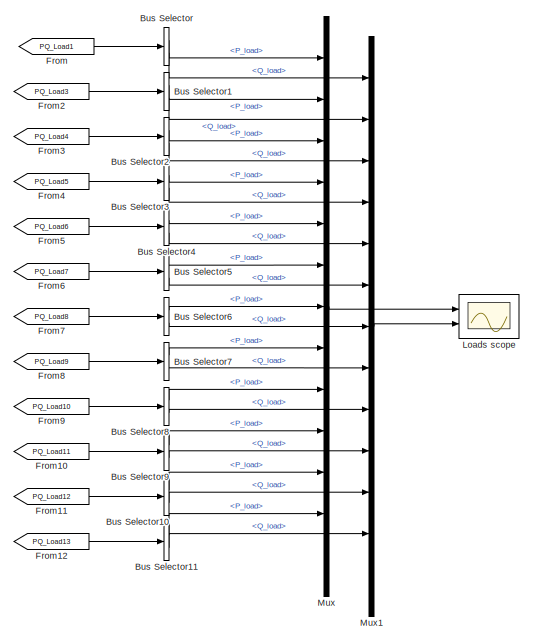
[diagram: root canvas - part 1/16, top left region]
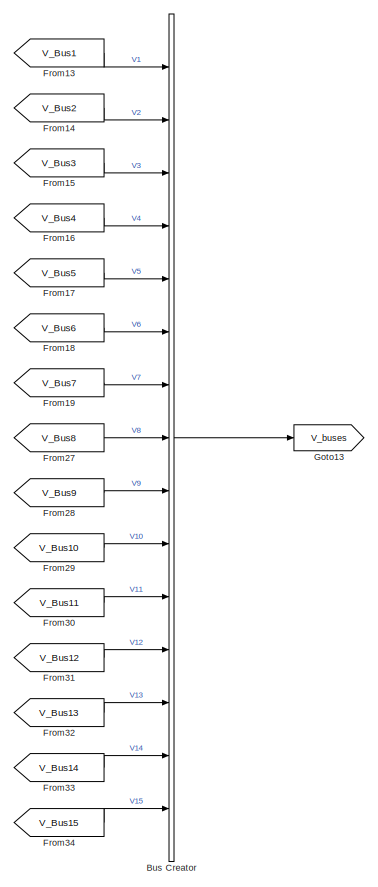
[diagram: root canvas - part 2/16, top left region]
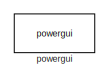
[diagram: root canvas - part 3/16, top center region]
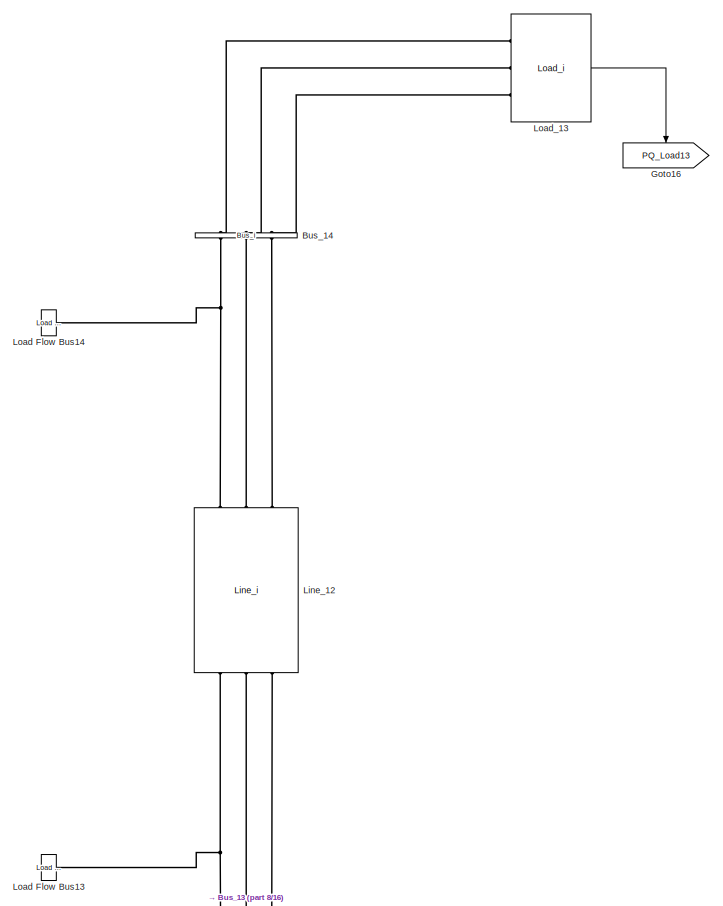
[diagram: root canvas - part 4/16, top right region]
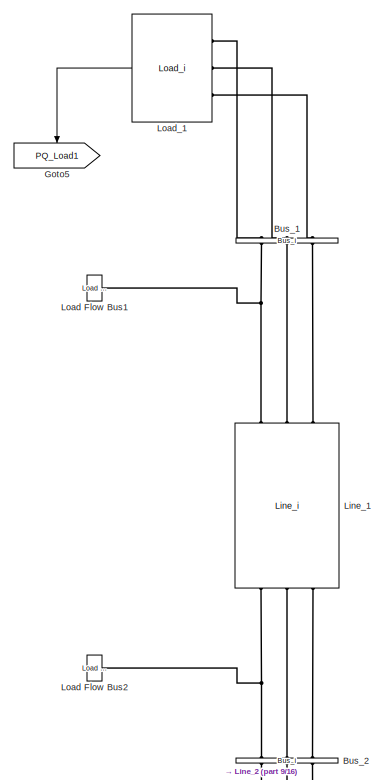
[diagram: root canvas - part 5/16, top center region]
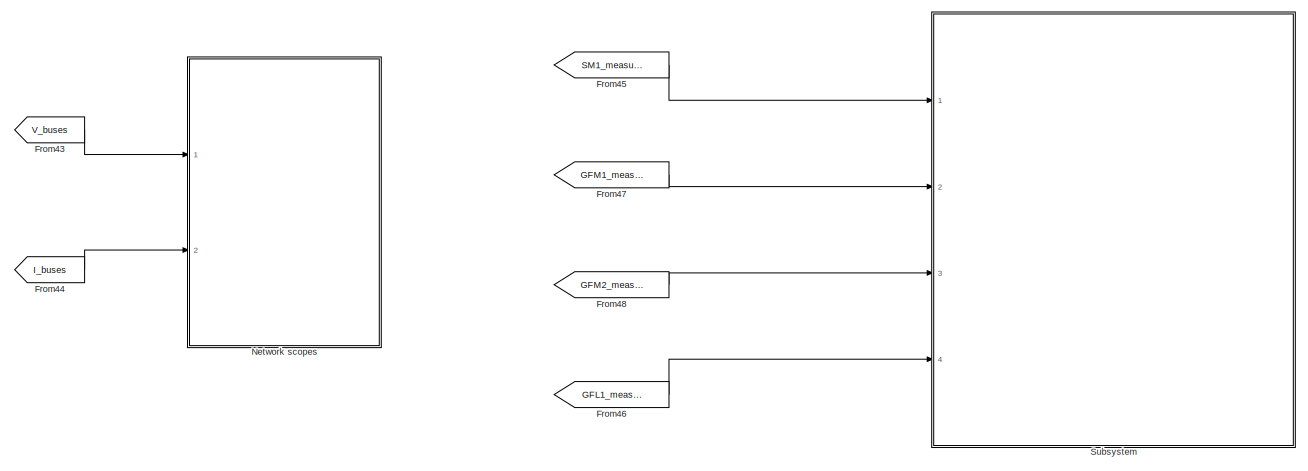
[diagram: root canvas - part 6/16, top left region]
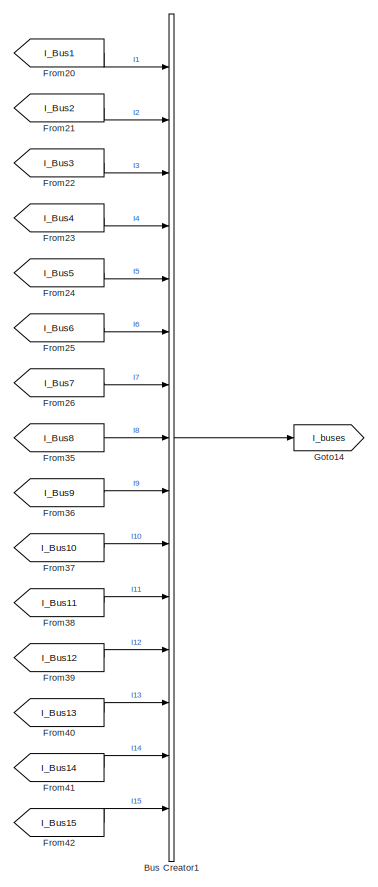
[diagram: root canvas - part 7/16, middle left region]
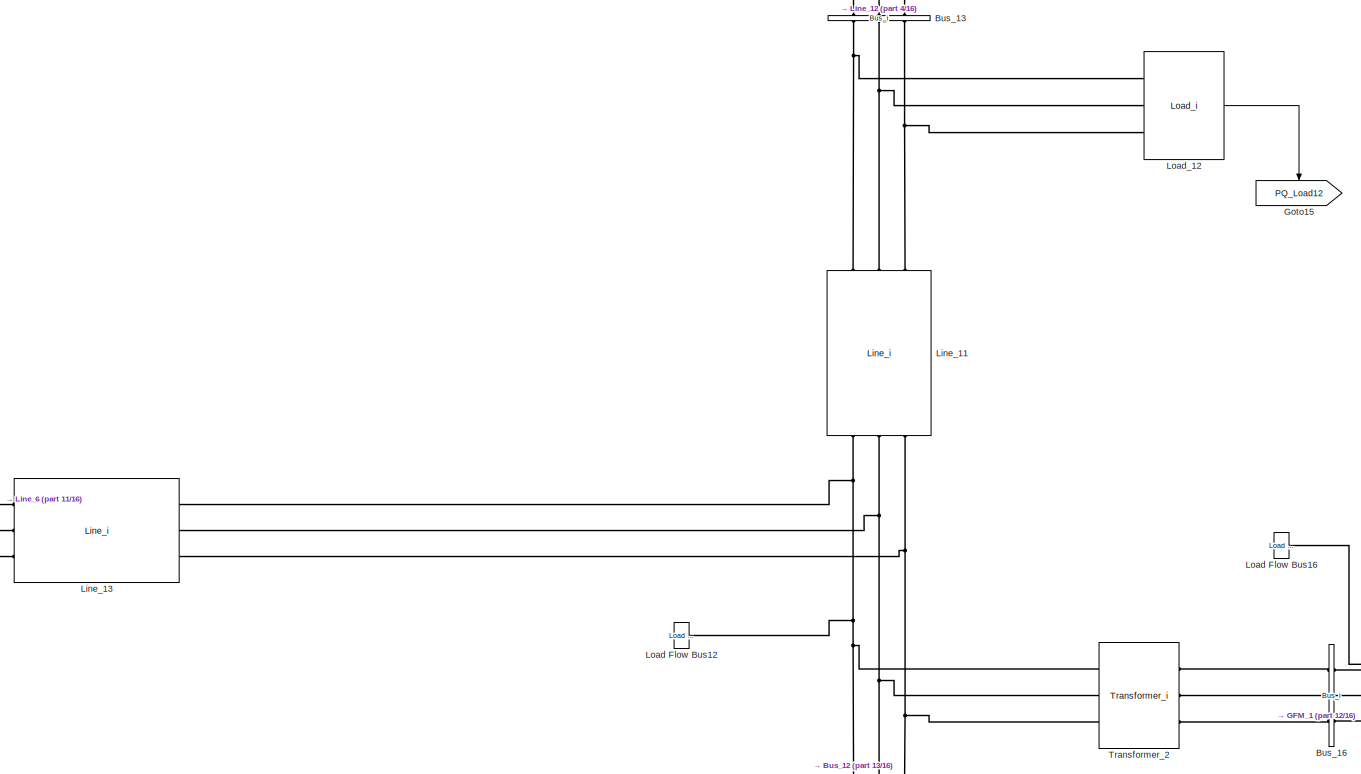
[diagram: root canvas - part 8/16, middle right region]
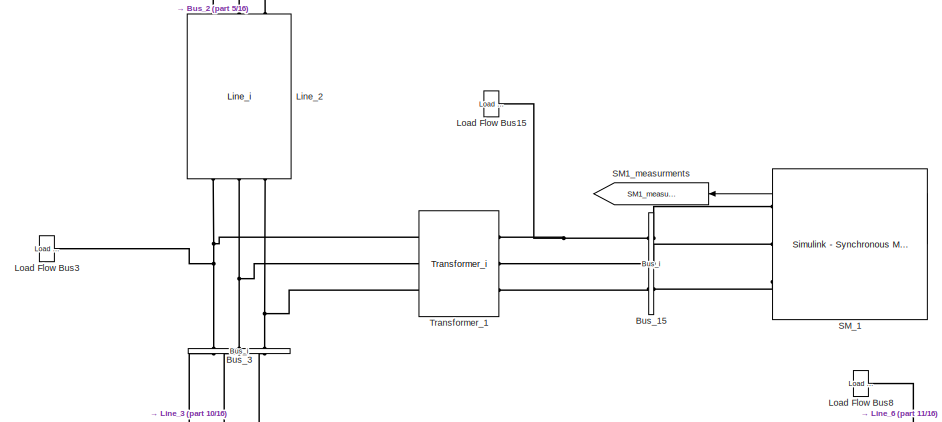
[diagram: root canvas - part 9/16, central region]
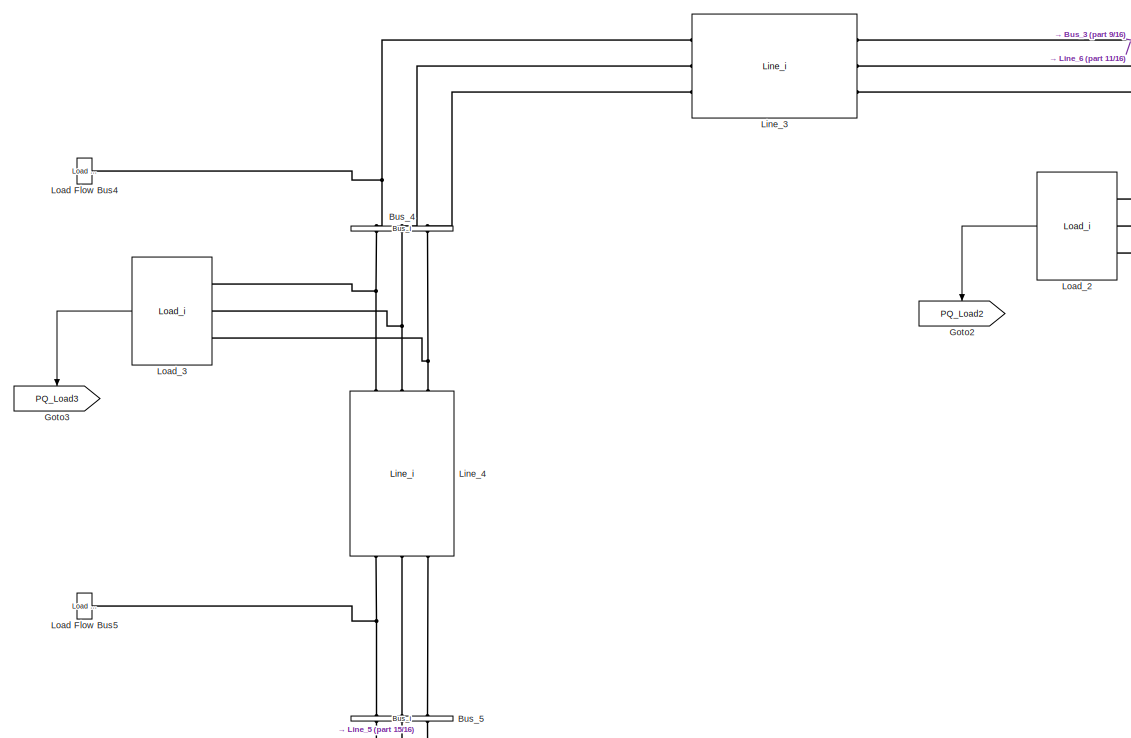
[diagram: root canvas - part 10/16, central region]
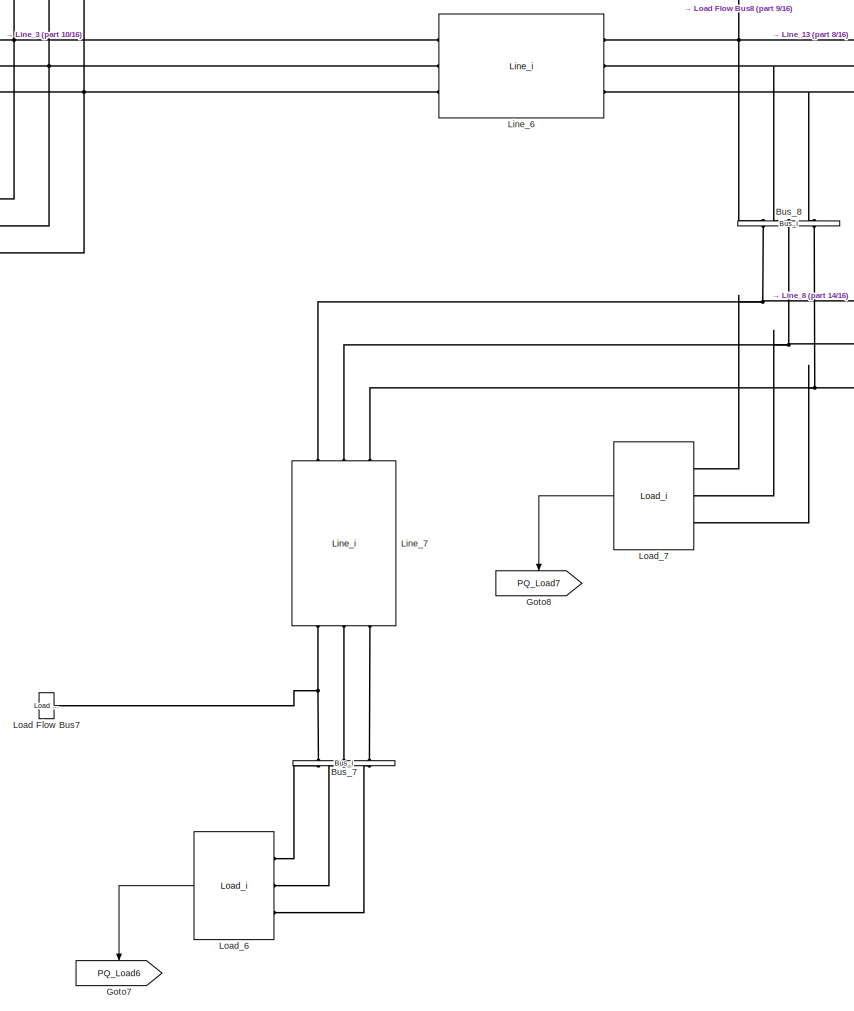
[diagram: root canvas - part 11/16, central region]
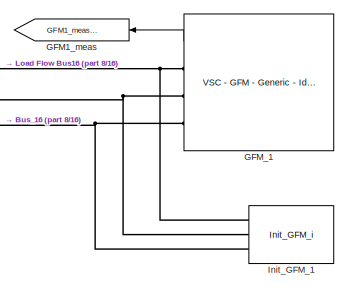
[diagram: root canvas - part 12/16, middle right region]
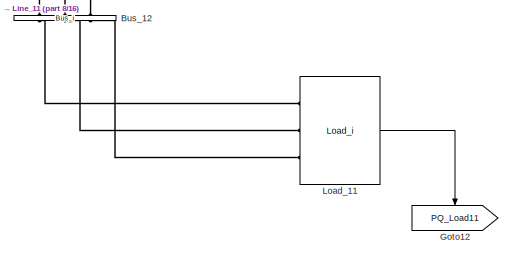
[diagram: root canvas - part 13/16, middle right region]
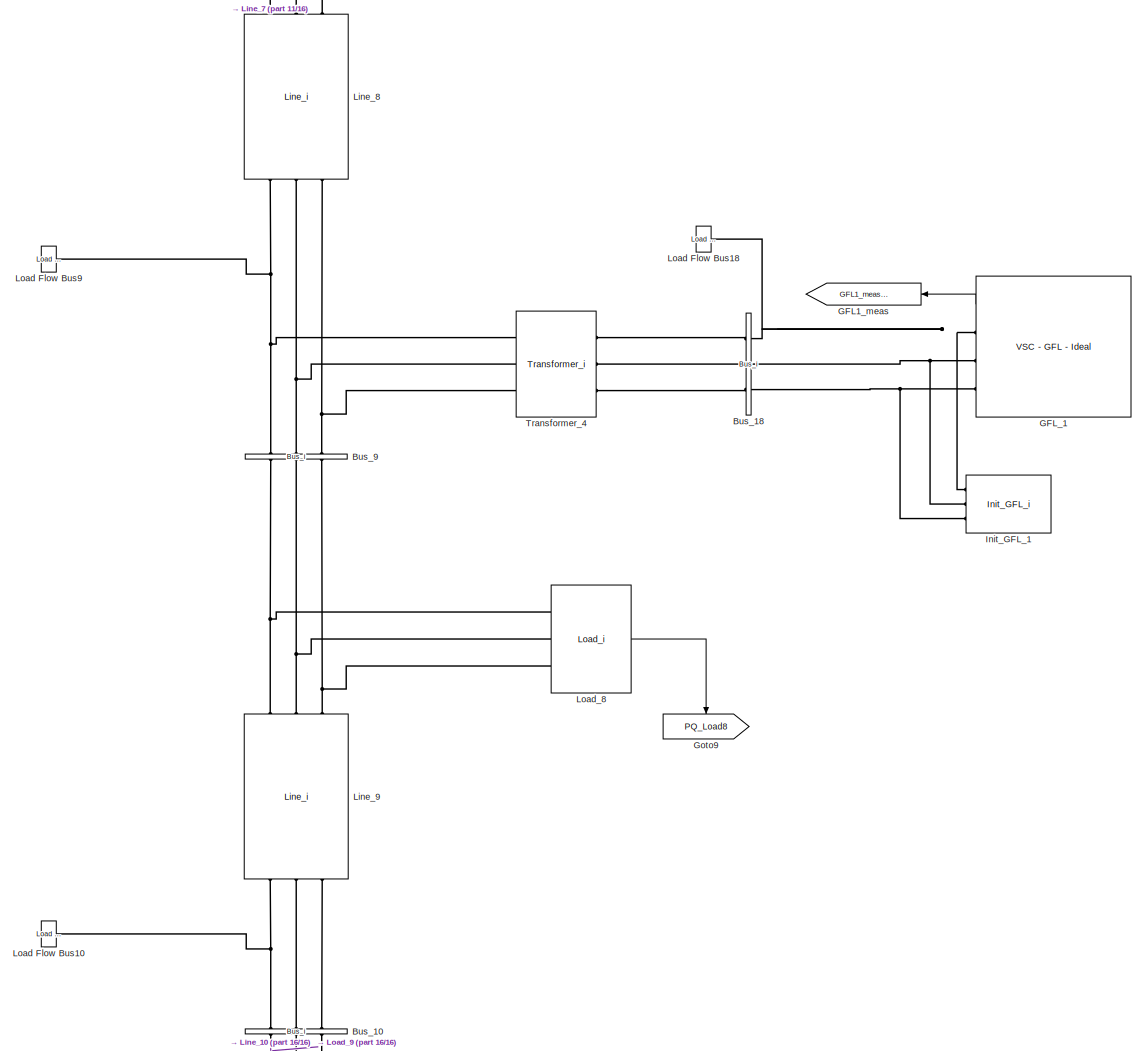
[diagram: root canvas - part 14/16, bottom right region]
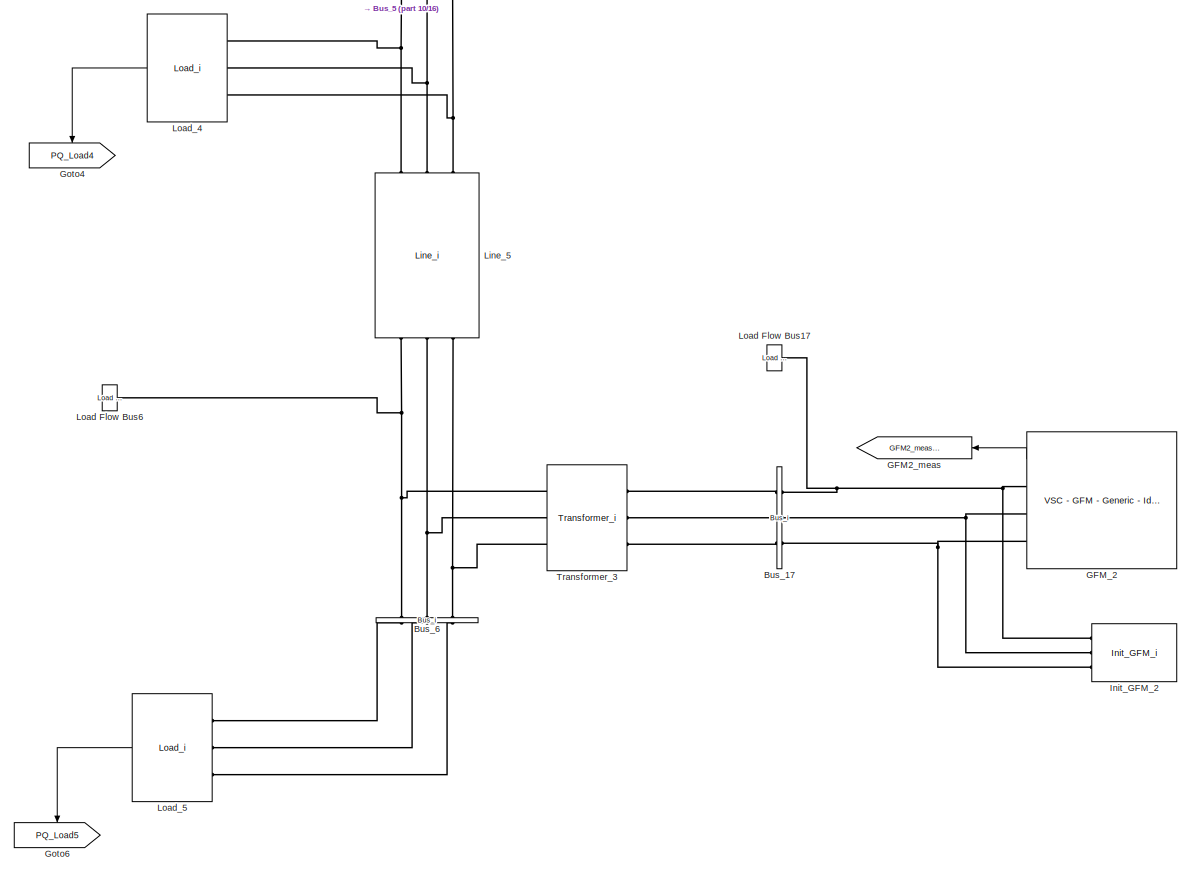
[diagram: root canvas - part 15/16, bottom center region]
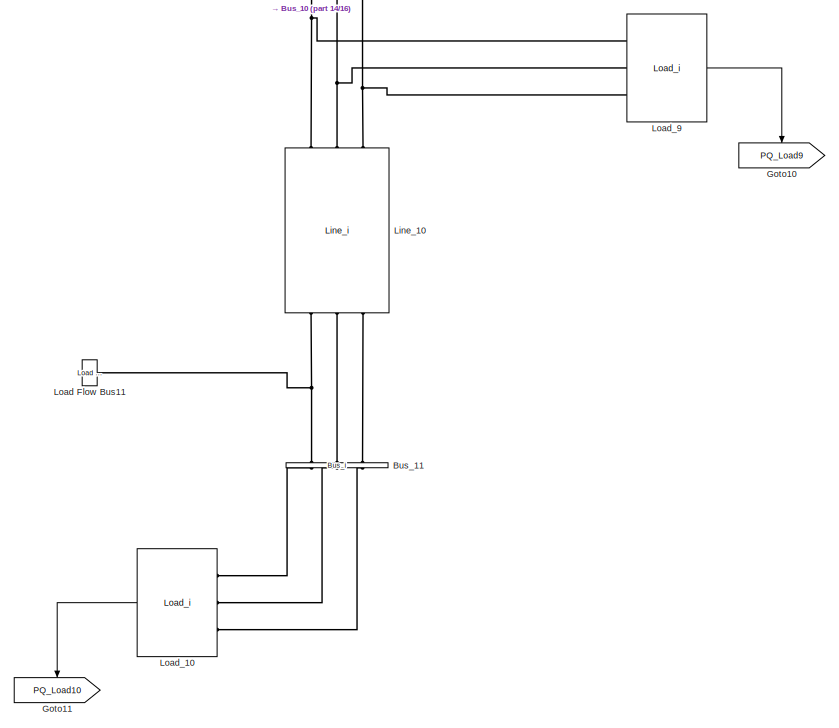
[diagram: root canvas - part 16/16, bottom right region]
MODEL slx_92b7acc8e390
KIND model
CONFIG AbsTol = auto
CONFIG EnableMultiTasking = off
CONFIG FixedStep = auto
CONFIG MaxStep = auto
CONFIG MinStep = auto
CONFIG RelTol = 1e-3
CONFIG SampleTimeConstraint = Unconstrained
CONFIG SolverName = FixedStepAuto
CONFIG StartTime = 0.0
CONFIG StopTime = simlt.T_stop
BLOCK [BusCreator] Bus Creator
  DisplayOption = bar
  InheritFromInputs = on
  Inputs = 15
  Ports = [15, 1]
BLOCK [BusCreator] Bus Creator1
  DisplayOption = bar
  InheritFromInputs = on
  Inputs = 15
  Ports = [15, 1]
BLOCK [BusSelector] Bus Selector
  OutputSignals = P_load,Q_load
  Ports = [1, 2]
BLOCK [BusSelector] Bus Selector1
  OutputSignals = P_load,Q_load
  Ports = [1, 2]
BLOCK [BusSelector] Bus Selector10
  OutputSignals = P_load,Q_load
  Ports = [1, 2]
BLOCK [BusSelector] Bus Selector11
  OutputSignals = P_load,Q_load
  Ports = [1, 2]
BLOCK [BusSelector] Bus Selector2
  OutputSignals = P_load,Q_load
  Ports = [1, 2]
BLOCK [BusSelector] Bus Selector3
  OutputSignals = P_load,Q_load
  Ports = [1, 2]
BLOCK [BusSelector] Bus Selector4
  OutputSignals = P_load,Q_load
  Ports = [1, 2]
BLOCK [BusSelector] Bus Selector5
  OutputSignals = P_load,Q_load
  Ports = [1, 2]
BLOCK [BusSelector] Bus Selector6
  OutputSignals = P_load,Q_load
  Ports = [1, 2]
BLOCK [BusSelector] Bus Selector7
  OutputSignals = P_load,Q_load
  Ports = [1, 2]
BLOCK [BusSelector] Bus Selector8
  OutputSignals = P_load,Q_load
  Ports = [1, 2]
BLOCK [BusSelector] Bus Selector9
  OutputSignals = P_load,Q_load
  Ports = [1, 2]
BLOCK [Reference] Bus_1  REF=G2ELib_V1/Miscellaneous Network Elements/Bus_i
  NameLocation = right
  Ports = [0, 0, 0, 0, 0, 3, 3]
  SourceBlock = G2ELib_V1/Miscellaneous Network Elements/Bus_i
  SourceType = Three-Phase VI Measurement
BLOCK [Reference] Bus_10  REF=G2ELib_V1/Miscellaneous Network Elements/Bus_i
  NameLocation = right
  Ports = [0, 0, 0, 0, 0, 3, 3]
  SourceBlock = G2ELib_V1/Miscellaneous Network Elements/Bus_i
  SourceType = Three-Phase VI Measurement
BLOCK [Reference] Bus_11  REF=G2ELib_V1/Miscellaneous Network Elements/Bus_i
  NameLocation = right
  Ports = [0, 0, 0, 0, 0, 3, 3]
  SourceBlock = G2ELib_V1/Miscellaneous Network Elements/Bus_i
  SourceType = Three-Phase VI Measurement
BLOCK [Reference] Bus_12  REF=G2ELib_V1/Miscellaneous Network Elements/Bus_i
  NameLocation = right
  Ports = [0, 0, 0, 0, 0, 3, 3]
  SourceBlock = G2ELib_V1/Miscellaneous Network Elements/Bus_i
  SourceType = Three-Phase VI Measurement
BLOCK [Reference] Bus_13  REF=G2ELib_V1/Miscellaneous Network Elements/Bus_i
  NameLocation = right
  Ports = [0, 0, 0, 0, 0, 3, 3]
  SourceBlock = G2ELib_V1/Miscellaneous Network Elements/Bus_i
  SourceType = Three-Phase VI Measurement
BLOCK [Reference] Bus_14  REF=G2ELib_V1/Miscellaneous Network Elements/Bus_i
  NameLocation = right
  Ports = [0, 0, 0, 0, 0, 3, 3]
  SourceBlock = G2ELib_V1/Miscellaneous Network Elements/Bus_i
  SourceType = Three-Phase VI Measurement
BLOCK [Reference] Bus_15  REF=G2ELib_V1/Miscellaneous Network Elements/Bus_i
  Ports = [0, 0, 0, 0, 0, 3, 3]
  SourceBlock = G2ELib_V1/Miscellaneous Network Elements/Bus_i
  SourceType = Three-Phase VI Measurement
BLOCK [Reference] Bus_16  REF=G2ELib_V1/Miscellaneous Network Elements/Bus_i
  Ports = [0, 0, 0, 0, 0, 3, 3]
  SourceBlock = G2ELib_V1/Miscellaneous Network Elements/Bus_i
  SourceType = Three-Phase VI Measurement
BLOCK [Reference] Bus_17  REF=G2ELib_V1/Miscellaneous Network Elements/Bus_i
  Ports = [0, 0, 0, 0, 0, 3, 3]
  SourceBlock = G2ELib_V1/Miscellaneous Network Elements/Bus_i
  SourceType = Three-Phase VI Measurement
BLOCK [Reference] Bus_18  REF=G2ELib_V1/Miscellaneous Network Elements/Bus_i
  Ports = [0, 0, 0, 0, 0, 3, 3]
  SourceBlock = G2ELib_V1/Miscellaneous Network Elements/Bus_i
  SourceType = Three-Phase VI Measurement
BLOCK [Reference] Bus_2  REF=G2ELib_V1/Miscellaneous Network Elements/Bus_i
  NameLocation = right
  Ports = [0, 0, 0, 0, 0, 3, 3]
  SourceBlock = G2ELib_V1/Miscellaneous Network Elements/Bus_i
  SourceType = Three-Phase VI Measurement
BLOCK [Reference] Bus_3  REF=G2ELib_V1/Miscellaneous Network Elements/Bus_i
  NameLocation = right
  Ports = [0, 0, 0, 0, 0, 3, 3]
  SourceBlock = G2ELib_V1/Miscellaneous Network Elements/Bus_i
  SourceType = Three-Phase VI Measurement
BLOCK [Reference] Bus_4  REF=G2ELib_V1/Miscellaneous Network Elements/Bus_i
  NameLocation = right
  Ports = [0, 0, 0, 0, 0, 3, 3]
  SourceBlock = G2ELib_V1/Miscellaneous Network Elements/Bus_i
  SourceType = Three-Phase VI Measurement
BLOCK [Reference] Bus_5  REF=G2ELib_V1/Miscellaneous Network Elements/Bus_i
  NameLocation = right
  Ports = [0, 0, 0, 0, 0, 3, 3]
  SourceBlock = G2ELib_V1/Miscellaneous Network Elements/Bus_i
  SourceType = Three-Phase VI Measurement
BLOCK [Reference] Bus_6  REF=G2ELib_V1/Miscellaneous Network Elements/Bus_i
  NameLocation = right
  Ports = [0, 0, 0, 0, 0, 3, 3]
  SourceBlock = G2ELib_V1/Miscellaneous Network Elements/Bus_i
  SourceType = Three-Phase VI Measurement
BLOCK [Reference] Bus_7  REF=G2ELib_V1/Miscellaneous Network Elements/Bus_i
  NameLocation = right
  Ports = [0, 0, 0, 0, 0, 3, 3]
  SourceBlock = G2ELib_V1/Miscellaneous Network Elements/Bus_i
  SourceType = Three-Phase VI Measurement
BLOCK [Reference] Bus_8  REF=G2ELib_V1/Miscellaneous Network Elements/Bus_i
  NameLocation = right
  Ports = [0, 0, 0, 0, 0, 3, 3]
  SourceBlock = G2ELib_V1/Miscellaneous Network Elements/Bus_i
  SourceType = Three-Phase VI Measurement
BLOCK [Reference] Bus_9  REF=G2ELib_V1/Miscellaneous Network Elements/Bus_i
  NameLocation = right
  Ports = [0, 0, 0, 0, 0, 3, 3]
  SourceBlock = G2ELib_V1/Miscellaneous Network Elements/Bus_i
  SourceType = Three-Phase VI Measurement
BLOCK [From] From
  GotoTag = PQ_Load1
  NameLocation = top
BLOCK [From] From10
  GotoTag = PQ_Load11
  NameLocation = top
BLOCK [From] From11
  GotoTag = PQ_Load12
  NameLocation = top
BLOCK [From] From12
  GotoTag = PQ_Load13
  NameLocation = top
BLOCK [From] From13
  GotoTag = V_Bus1
  TagVisibility = global
BLOCK [From] From14
  GotoTag = V_Bus2
  TagVisibility = global
BLOCK [From] From15
  GotoTag = V_Bus3
  TagVisibility = global
BLOCK [From] From16
  GotoTag = V_Bus4
  TagVisibility = global
BLOCK [From] From17
  GotoTag = V_Bus5
  TagVisibility = global
BLOCK [From] From18
  GotoTag = V_Bus6
  TagVisibility = global
BLOCK [From] From19
  GotoTag = V_Bus7
  TagVisibility = global
BLOCK [From] From2
  GotoTag = PQ_Load3
  NameLocation = top
BLOCK [From] From20
  GotoTag = I_Bus1
  TagVisibility = global
BLOCK [From] From21
  GotoTag = I_Bus2
  TagVisibility = global
BLOCK [From] From22
  GotoTag = I_Bus3
  TagVisibility = global
BLOCK [From] From23
  GotoTag = I_Bus4
  TagVisibility = global
BLOCK [From] From24
  GotoTag = I_Bus5
  TagVisibility = global
BLOCK [From] From25
  GotoTag = I_Bus6
  TagVisibility = global
BLOCK [From] From26
  GotoTag = I_Bus7
  TagVisibility = global
BLOCK [From] From27
  GotoTag = V_Bus8
  TagVisibility = global
BLOCK [From] From28
  GotoTag = V_Bus9
  TagVisibility = global
BLOCK [From] From29
  GotoTag = V_Bus10
  TagVisibility = global
BLOCK [From] From3
  GotoTag = PQ_Load4
  NameLocation = top
BLOCK [From] From30
  GotoTag = V_Bus11
  TagVisibility = global
BLOCK [From] From31
  GotoTag = V_Bus12
  TagVisibility = global
BLOCK [From] From32
  GotoTag = V_Bus13
  TagVisibility = global
BLOCK [From] From33
  GotoTag = V_Bus14
  TagVisibility = global
BLOCK [From] From34
  GotoTag = V_Bus15
  TagVisibility = global
BLOCK [From] From35
  GotoTag = I_Bus8
  TagVisibility = global
BLOCK [From] From36
  GotoTag = I_Bus9
  TagVisibility = global
BLOCK [From] From37
  GotoTag = I_Bus10
  TagVisibility = global
BLOCK [From] From38
  GotoTag = I_Bus11
  TagVisibility = global
BLOCK [From] From39
  GotoTag = I_Bus12
  TagVisibility = global
BLOCK [From] From4
  GotoTag = PQ_Load5
  NameLocation = top
BLOCK [From] From40
  GotoTag = I_Bus13
  TagVisibility = global
BLOCK [From] From41
  GotoTag = I_Bus14
  TagVisibility = global
BLOCK [From] From42
  GotoTag = I_Bus15
  TagVisibility = global
BLOCK [From] From43
  GotoTag = V_buses
BLOCK [From] From44
  GotoTag = I_buses
BLOCK [From] From45
  GotoTag = SM1_measurements
BLOCK [From] From46
  GotoTag = GFL1_measurements
BLOCK [From] From47
  GotoTag = GFM1_measurements
BLOCK [From] From48
  GotoTag = GFM2_measurements
BLOCK [From] From5
  GotoTag = PQ_Load6
  NameLocation = top
BLOCK [From] From6
  GotoTag = PQ_Load7
  NameLocation = top
BLOCK [From] From7
  GotoTag = PQ_Load8
  NameLocation = top
BLOCK [From] From8
  GotoTag = PQ_Load9
  NameLocation = top
BLOCK [From] From9
  GotoTag = PQ_Load10
  NameLocation = top
BLOCK [Goto] GFL1_meas
  GotoTag = GFL1_measurements
  NameLocation = top
BLOCK [Reference] GFL_1  REF=G2ELib_V1/DC//AC Converters/Voltage Source Converters (VSC)/Grid-Following VSC (GFL)/VSC - GFL - Ideal
  Ports = [0, 1, 0, 0, 0, 0, 3]
  SourceBlock = G2ELib_V1/DC//AC Converters/Voltage Source Converters (VSC)/Grid-Following VSC (GFL)/VSC - GFL - Ideal
BLOCK [Goto] GFM1_meas
  GotoTag = GFM1_measurements
  NameLocation = top
BLOCK [Goto] GFM2_meas
  GotoTag = GFM2_measurements
  NameLocation = top
BLOCK [Reference] GFM_1  REF=G2ELib_V1/DC//AC Converters/Voltage Source Converters (VSC)/Grid-Forming VSC (GFM)/VSC - GFM - Generic - Ideal
  Ports = [0, 1, 0, 0, 0, 0, 3]
  SourceBlock = G2ELib_V1/DC//AC Converters/Voltage Source Converters (VSC)/Grid-Forming VSC (GFM)/VSC - GFM - Generic - Ideal
BLOCK [Reference] GFM_2  REF=G2ELib_V1/DC//AC Converters/Voltage Source Converters (VSC)/Grid-Forming VSC (GFM)/VSC - GFM - Generic - Ideal
  Ports = [0, 1, 0, 0, 0, 0, 3]
  SourceBlock = G2ELib_V1/DC//AC Converters/Voltage Source Converters (VSC)/Grid-Forming VSC (GFM)/VSC - GFM - Generic - Ideal
BLOCK [Goto] Goto10
  GotoTag = PQ_Load9
  NameLocation = right
BLOCK [Goto] Goto11
  GotoTag = PQ_Load10
  NameLocation = right
BLOCK [Goto] Goto12
  GotoTag = PQ_Load11
  NameLocation = right
BLOCK [Goto] Goto13
  GotoTag = V_buses
BLOCK [Goto] Goto14
  GotoTag = I_buses
BLOCK [Goto] Goto15
  GotoTag = PQ_Load12
  NameLocation = right
BLOCK [Goto] Goto16
  GotoTag = PQ_Load13
  NameLocation = right
BLOCK [Goto] Goto2
  GotoTag = PQ_Load2
  NameLocation = right
BLOCK [Goto] Goto3
  GotoTag = PQ_Load3
  NameLocation = right
BLOCK [Goto] Goto4
  GotoTag = PQ_Load4
  NameLocation = right
BLOCK [Goto] Goto5
  GotoTag = PQ_Load1
  NameLocation = right
BLOCK [Goto] Goto6
  GotoTag = PQ_Load5
  NameLocation = right
BLOCK [Goto] Goto7
  GotoTag = PQ_Load6
  NameLocation = right
BLOCK [Goto] Goto8
  GotoTag = PQ_Load7
  NameLocation = right
BLOCK [Goto] Goto9
  GotoTag = PQ_Load8
  NameLocation = right
BLOCK [Reference] Init_GFL_1  REF=G2ELib_V1/DC//AC Converters/Voltage Source Converters (VSC)/Grid-Following VSC (GFL)/Init_GFL_i
  Commented = on
  Ports = [0, 0, 0, 0, 0, 0, 3]
  SourceBlock = G2ELib_V1/DC//AC Converters/Voltage Source Converters (VSC)/Grid-Following VSC (GFL)/Init_GFL_i
  SourceType = Three-Phase Source
BLOCK [Reference] Init_GFM_1  REF=G2ELib_V1/DC//AC Converters/Voltage Source Converters (VSC)/Grid-Forming VSC (GFM)/Init_GFM_i
  Commented = on
  Ports = [0, 0, 0, 0, 0, 0, 3]
  SourceBlock = G2ELib_V1/DC//AC Converters/Voltage Source Converters (VSC)/Grid-Forming VSC (GFM)/Init_GFM_i
  SourceType = Three-Phase Source
BLOCK [Reference] Init_GFM_2  REF=G2ELib_V1/DC//AC Converters/Voltage Source Converters (VSC)/Grid-Forming VSC (GFM)/Init_GFM_i
  Commented = on
  Ports = [0, 0, 0, 0, 0, 0, 3]
  SourceBlock = G2ELib_V1/DC//AC Converters/Voltage Source Converters (VSC)/Grid-Forming VSC (GFM)/Init_GFM_i
  SourceType = Three-Phase Source
BLOCK [Reference] Line_1  REF=G2ELib_V1/Miscellaneous Network Elements/Line_i
  AttributesFormatString = \n
  NameLocation = right
  Ports = [0, 0, 0, 0, 0, 3, 3]
  SourceBlock = G2ELib_V1/Miscellaneous Network Elements/Line_i
  SourceType = Three-Phase PI Section Line
BLOCK [Reference] Line_10  REF=G2ELib_V1/Miscellaneous Network Elements/Line_i
  AttributesFormatString = \n
  NameLocation = right
  Ports = [0, 0, 0, 0, 0, 3, 3]
  SourceBlock = G2ELib_V1/Miscellaneous Network Elements/Line_i
  SourceType = Three-Phase PI Section Line
BLOCK [Reference] Line_11  REF=G2ELib_V1/Miscellaneous Network Elements/Line_i
  AttributesFormatString = \n
  NameLocation = right
  Ports = [0, 0, 0, 0, 0, 3, 3]
  SourceBlock = G2ELib_V1/Miscellaneous Network Elements/Line_i
  SourceType = Three-Phase PI Section Line
BLOCK [Reference] Line_12  REF=G2ELib_V1/Miscellaneous Network Elements/Line_i
  AttributesFormatString = \n
  NameLocation = right
  Ports = [0, 0, 0, 0, 0, 3, 3]
  SourceBlock = G2ELib_V1/Miscellaneous Network Elements/Line_i
  SourceType = Three-Phase PI Section Line
BLOCK [Reference] Line_13  REF=G2ELib_V1/Miscellaneous Network Elements/Line_i
  AttributesFormatString = \n
  Ports = [0, 0, 0, 0, 0, 3, 3]
  SourceBlock = G2ELib_V1/Miscellaneous Network Elements/Line_i
  SourceType = Three-Phase PI Section Line
BLOCK [Reference] Line_2  REF=G2ELib_V1/Miscellaneous Network Elements/Line_i
  AttributesFormatString = \n
  NameLocation = right
  Ports = [0, 0, 0, 0, 0, 3, 3]
  SourceBlock = G2ELib_V1/Miscellaneous Network Elements/Line_i
  SourceType = Three-Phase PI Section Line
BLOCK [Reference] Line_3  REF=G2ELib_V1/Miscellaneous Network Elements/Line_i
  AttributesFormatString = \n
  Ports = [0, 0, 0, 0, 0, 3, 3]
  SourceBlock = G2ELib_V1/Miscellaneous Network Elements/Line_i
  SourceType = Three-Phase PI Section Line
BLOCK [Reference] Line_4  REF=G2ELib_V1/Miscellaneous Network Elements/Line_i
  AttributesFormatString = \n
  NameLocation = right
  Ports = [0, 0, 0, 0, 0, 3, 3]
  SourceBlock = G2ELib_V1/Miscellaneous Network Elements/Line_i
  SourceType = Three-Phase PI Section Line
BLOCK [Reference] Line_5  REF=G2ELib_V1/Miscellaneous Network Elements/Line_i
  AttributesFormatString = \n
  NameLocation = right
  Ports = [0, 0, 0, 0, 0, 3, 3]
  SourceBlock = G2ELib_V1/Miscellaneous Network Elements/Line_i
  SourceType = Three-Phase PI Section Line
BLOCK [Reference] Line_6  REF=G2ELib_V1/Miscellaneous Network Elements/Line_i
  AttributesFormatString = \n
  Ports = [0, 0, 0, 0, 0, 3, 3]
  SourceBlock = G2ELib_V1/Miscellaneous Network Elements/Line_i
  SourceType = Three-Phase PI Section Line
BLOCK [Reference] Line_7  REF=G2ELib_V1/Miscellaneous Network Elements/Line_i
  AttributesFormatString = \n
  NameLocation = right
  Ports = [0, 0, 0, 0, 0, 3, 3]
  SourceBlock = G2ELib_V1/Miscellaneous Network Elements/Line_i
  SourceType = Three-Phase PI Section Line
BLOCK [Reference] Line_8  REF=G2ELib_V1/Miscellaneous Network Elements/Line_i
  AttributesFormatString = \n
  NameLocation = right
  Ports = [0, 0, 0, 0, 0, 3, 3]
  SourceBlock = G2ELib_V1/Miscellaneous Network Elements/Line_i
  SourceType = Three-Phase PI Section Line
BLOCK [Reference] Line_9  REF=G2ELib_V1/Miscellaneous Network Elements/Line_i
  AttributesFormatString = \n
  NameLocation = right
  Ports = [0, 0, 0, 0, 0, 3, 3]
  SourceBlock = G2ELib_V1/Miscellaneous Network Elements/Line_i
  SourceType = Three-Phase PI Section Line
BLOCK [Reference] Load Flow Bus1  REF=powerlib/Measurements/Load Flow Bus
  AttributesFormatString = %<ID>\n%<Vbase>V\n%<VLF>pu\n%<angleLF>deg.
  Ports = [0, 0, 0, 0, 0, 1]
  SourceBlock = powerlib/Measurements/Load Flow Bus
  SourceProductBaseCode = PS
  SourceType = Load Flow Bus
BLOCK [Reference] Load Flow Bus10  REF=powerlib/Measurements/Load Flow Bus
  AttributesFormatString = %<ID>\n%<Vbase>V\n%<VLF>pu\n%<angleLF>deg.
  Ports = [0, 0, 0, 0, 0, 1]
  SourceBlock = powerlib/Measurements/Load Flow Bus
  SourceProductBaseCode = PS
  SourceType = Load Flow Bus
BLOCK [Reference] Load Flow Bus11  REF=powerlib/Measurements/Load Flow Bus
  AttributesFormatString = %<ID>\n%<Vbase>V\n%<VLF>pu\n%<angleLF>deg.
  Ports = [0, 0, 0, 0, 0, 1]
  SourceBlock = powerlib/Measurements/Load Flow Bus
  SourceProductBaseCode = PS
  SourceType = Load Flow Bus
BLOCK [Reference] Load Flow Bus12  REF=powerlib/Measurements/Load Flow Bus
  AttributesFormatString = %<ID>\n%<Vbase>V\n%<VLF>pu\n%<angleLF>deg.
  Ports = [0, 0, 0, 0, 0, 1]
  SourceBlock = powerlib/Measurements/Load Flow Bus
  SourceProductBaseCode = PS
  SourceType = Load Flow Bus
BLOCK [Reference] Load Flow Bus13  REF=powerlib/Measurements/Load Flow Bus
  AttributesFormatString = %<ID>\n%<Vbase>V\n%<VLF>pu\n%<angleLF>deg.
  Ports = [0, 0, 0, 0, 0, 1]
  SourceBlock = powerlib/Measurements/Load Flow Bus
  SourceProductBaseCode = PS
  SourceType = Load Flow Bus
BLOCK [Reference] Load Flow Bus14  REF=powerlib/Measurements/Load Flow Bus
  AttributesFormatString = %<ID>\n%<Vbase>V\n%<VLF>pu\n%<angleLF>deg.
  Ports = [0, 0, 0, 0, 0, 1]
  SourceBlock = powerlib/Measurements/Load Flow Bus
  SourceProductBaseCode = PS
  SourceType = Load Flow Bus
BLOCK [Reference] Load Flow Bus15  REF=powerlib/Measurements/Load Flow Bus
  AttributesFormatString = %<ID>\n%<Vbase>V\n%<VLF>pu\n%<angleLF>deg.
  Ports = [0, 0, 0, 0, 0, 1]
  SourceBlock = powerlib/Measurements/Load Flow Bus
  SourceProductBaseCode = PS
  SourceType = Load Flow Bus
BLOCK [Reference] Load Flow Bus16  REF=powerlib/Measurements/Load Flow Bus
  AttributesFormatString = %<ID>\n%<Vbase>V\n%<VLF>pu\n%<angleLF>deg.
  Ports = [0, 0, 0, 0, 0, 1]
  SourceBlock = powerlib/Measurements/Load Flow Bus
  SourceProductBaseCode = PS
  SourceType = Load Flow Bus
BLOCK [Reference] Load Flow Bus17  REF=powerlib/Measurements/Load Flow Bus
  AttributesFormatString = %<ID>\n%<Vbase>V\n%<VLF>pu\n%<angleLF>deg.
  Ports = [0, 0, 0, 0, 0, 1]
  SourceBlock = powerlib/Measurements/Load Flow Bus
  SourceProductBaseCode = PS
  SourceType = Load Flow Bus
BLOCK [Reference] Load Flow Bus18  REF=powerlib/Measurements/Load Flow Bus
  AttributesFormatString = %<ID>\n%<Vbase>V\n%<VLF>pu\n%<angleLF>deg.
  Ports = [0, 0, 0, 0, 0, 1]
  SourceBlock = powerlib/Measurements/Load Flow Bus
  SourceProductBaseCode = PS
  SourceType = Load Flow Bus
BLOCK [Reference] Load Flow Bus2  REF=powerlib/Measurements/Load Flow Bus
  AttributesFormatString = %<ID>\n%<Vbase>V\n%<VLF>pu\n%<angleLF>deg.
  Ports = [0, 0, 0, 0, 0, 1]
  SourceBlock = powerlib/Measurements/Load Flow Bus
  SourceProductBaseCode = PS
  SourceType = Load Flow Bus
BLOCK [Reference] Load Flow Bus3  REF=powerlib/Measurements/Load Flow Bus
  AttributesFormatString = %<ID>\n%<Vbase>V\n%<VLF>pu\n%<angleLF>deg.
  Ports = [0, 0, 0, 0, 0, 1]
  SourceBlock = powerlib/Measurements/Load Flow Bus
  SourceProductBaseCode = PS
  SourceType = Load Flow Bus
BLOCK [Reference] Load Flow Bus4  REF=powerlib/Measurements/Load Flow Bus
  AttributesFormatString = %<ID>\n%<Vbase>V\n%<VLF>pu\n%<angleLF>deg.
  Ports = [0, 0, 0, 0, 0, 1]
  SourceBlock = powerlib/Measurements/Load Flow Bus
  SourceProductBaseCode = PS
  SourceType = Load Flow Bus
BLOCK [Reference] Load Flow Bus5  REF=powerlib/Measurements/Load Flow Bus
  AttributesFormatString = %<ID>\n%<Vbase>V\n%<VLF>pu\n%<angleLF>deg.
  Ports = [0, 0, 0, 0, 0, 1]
  SourceBlock = powerlib/Measurements/Load Flow Bus
  SourceProductBaseCode = PS
  SourceType = Load Flow Bus
BLOCK [Reference] Load Flow Bus6  REF=powerlib/Measurements/Load Flow Bus
  AttributesFormatString = %<ID>\n%<Vbase>V\n%<VLF>pu\n%<angleLF>deg.
  Ports = [0, 0, 0, 0, 0, 1]
  SourceBlock = powerlib/Measurements/Load Flow Bus
  SourceProductBaseCode = PS
  SourceType = Load Flow Bus
BLOCK [Reference] Load Flow Bus7  REF=powerlib/Measurements/Load Flow Bus
  AttributesFormatString = %<ID>\n%<Vbase>V\n%<VLF>pu\n%<angleLF>deg.
  Ports = [0, 0, 0, 0, 0, 1]
  SourceBlock = powerlib/Measurements/Load Flow Bus
  SourceProductBaseCode = PS
  SourceType = Load Flow Bus
BLOCK [Reference] Load Flow Bus8  REF=powerlib/Measurements/Load Flow Bus
  AttributesFormatString = %<ID>\n%<Vbase>V\n%<VLF>pu\n%<angleLF>deg.
  Ports = [0, 0, 0, 0, 0, 1]
  SourceBlock = powerlib/Measurements/Load Flow Bus
  SourceProductBaseCode = PS
  SourceType = Load Flow Bus
BLOCK [Reference] Load Flow Bus9  REF=powerlib/Measurements/Load Flow Bus
  AttributesFormatString = %<ID>\n%<Vbase>V\n%<VLF>pu\n%<angleLF>deg.
  Ports = [0, 0, 0, 0, 0, 1]
  SourceBlock = powerlib/Measurements/Load Flow Bus
  SourceProductBaseCode = PS
  SourceType = Load Flow Bus
BLOCK [Reference] Load_1  REF=G2ELib_V1/Load Models/Load_i
  Ports = [0, 1, 0, 0, 0, 3]
  SourceBlock = G2ELib_V1/Load Models/Load_i
  SourceType = SubSystem
BLOCK [Reference] Load_10  REF=G2ELib_V1/Load Models/Load_i
  Ports = [0, 1, 0, 0, 0, 3]
  SourceBlock = G2ELib_V1/Load Models/Load_i
  SourceType = SubSystem
BLOCK [Reference] Load_11  REF=G2ELib_V1/Load Models/Load_i
  Ports = [0, 1, 0, 0, 0, 3]
  SourceBlock = G2ELib_V1/Load Models/Load_i
  SourceType = SubSystem
BLOCK [Reference] Load_12  REF=G2ELib_V1/Load Models/Load_i
  Ports = [0, 1, 0, 0, 0, 3]
  SourceBlock = G2ELib_V1/Load Models/Load_i
  SourceType = SubSystem
BLOCK [Reference] Load_13  REF=G2ELib_V1/Load Models/Load_i
  Ports = [0, 1, 0, 0, 0, 3]
  SourceBlock = G2ELib_V1/Load Models/Load_i
  SourceType = SubSystem
BLOCK [Reference] Load_2  REF=G2ELib_V1/Load Models/Load_i
  Ports = [0, 1, 0, 0, 0, 3]
  SourceBlock = G2ELib_V1/Load Models/Load_i
  SourceType = SubSystem
BLOCK [Reference] Load_3  REF=G2ELib_V1/Load Models/Load_i
  Ports = [0, 1, 0, 0, 0, 3]
  SourceBlock = G2ELib_V1/Load Models/Load_i
  SourceType = SubSystem
BLOCK [Reference] Load_4  REF=G2ELib_V1/Load Models/Load_i
  Ports = [0, 1, 0, 0, 0, 3]
  SourceBlock = G2ELib_V1/Load Models/Load_i
  SourceType = SubSystem
BLOCK [Reference] Load_5  REF=G2ELib_V1/Load Models/Load_i
  Ports = [0, 1, 0, 0, 0, 3]
  SourceBlock = G2ELib_V1/Load Models/Load_i
  SourceType = SubSystem
BLOCK [Reference] Load_6  REF=G2ELib_V1/Load Models/Load_i
  Ports = [0, 1, 0, 0, 0, 3]
  SourceBlock = G2ELib_V1/Load Models/Load_i
  SourceType = SubSystem
BLOCK [Reference] Load_7  REF=G2ELib_V1/Load Models/Load_i
  Ports = [0, 1, 0, 0, 0, 3]
  SourceBlock = G2ELib_V1/Load Models/Load_i
  SourceType = SubSystem
BLOCK [Reference] Load_8  REF=G2ELib_V1/Load Models/Load_i
  Ports = [0, 1, 0, 0, 0, 3]
  SourceBlock = G2ELib_V1/Load Models/Load_i
  SourceType = SubSystem
BLOCK [Reference] Load_9  REF=G2ELib_V1/Load Models/Load_i
  Ports = [0, 1, 0, 0, 0, 3]
  SourceBlock = G2ELib_V1/Load Models/Load_i
  SourceType = SubSystem
BLOCK [Scope] Loads scope
  Commented = on
  Floating = off
  NumInputPorts = 2
  Ports = [2]
  ScopeSpecificationString = Simulink.scopes.TimeScopeBlockCfg('CurrentConfiguration', extmgr.ConfigurationSet(extmgr.Configuration('Core','General UI',true),extmgr.Configuration('Core','Source UI',true),extmgr.Configuration('Sources','WiredSimulink',true),extmgr.Configuration('Visuals','Time Domain',true,'SerializedDisplays',{struct('MinYLimReal','-151123.84469','MaxYLimReal','1360114.6022','YLabelReal','','MinYLimMag','    ...<+2931ch>
BLOCK [Mux] Mux
  DisplayOption = bar
  Inputs = 13
  Ports = [13, 1]
BLOCK [Mux] Mux1
  DisplayOption = bar
  Inputs = 13
  Ports = [13, 1]
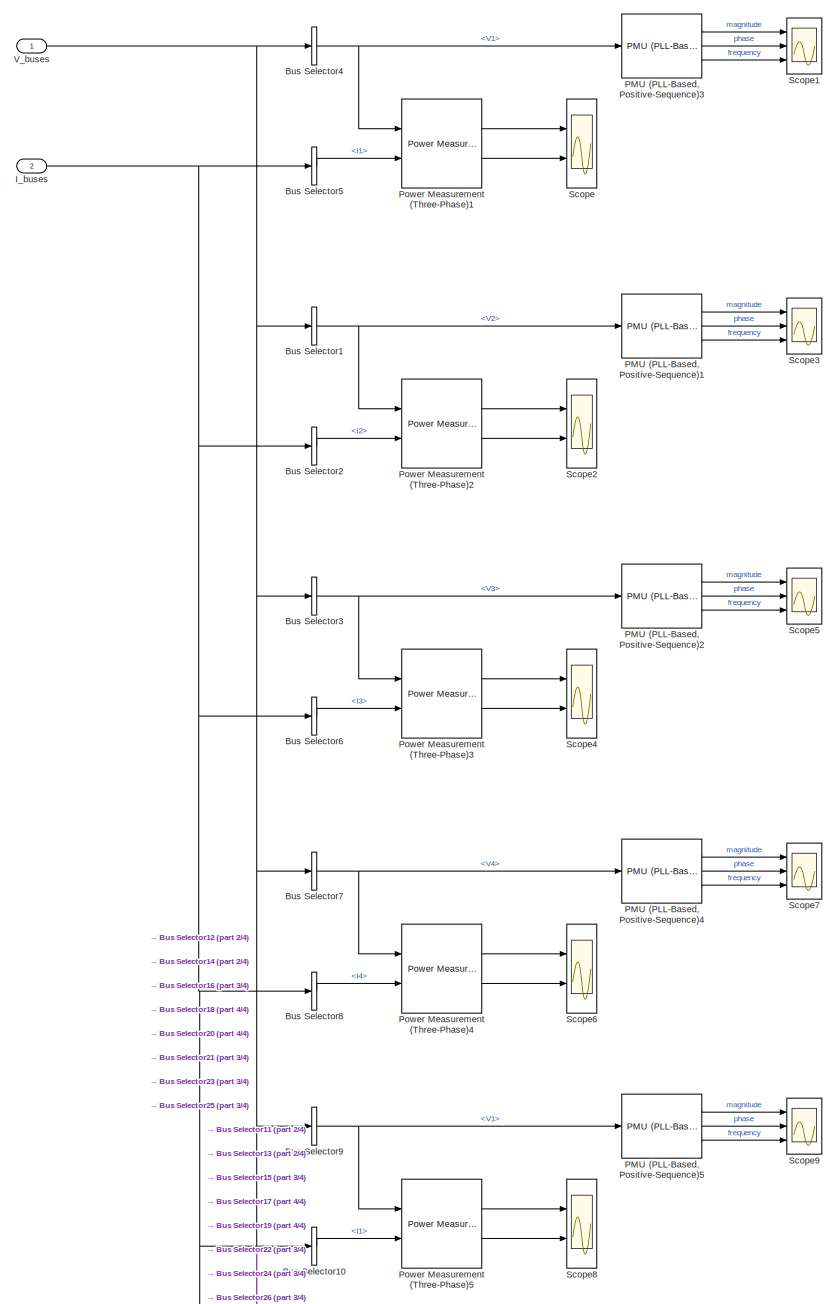
[diagram: Network scopes - part 1/4, full width, top band]
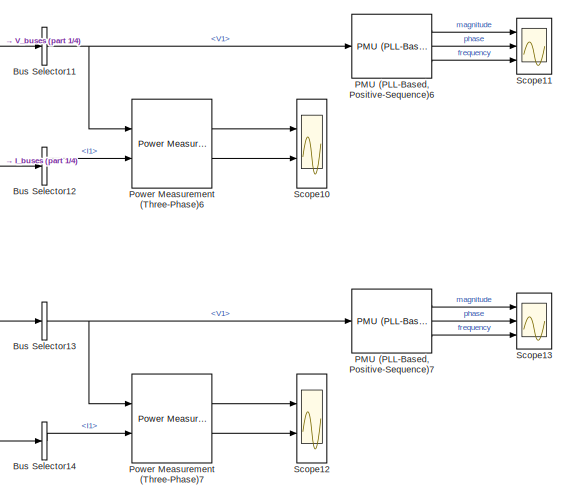
[diagram: Network scopes - part 2/4, central region]
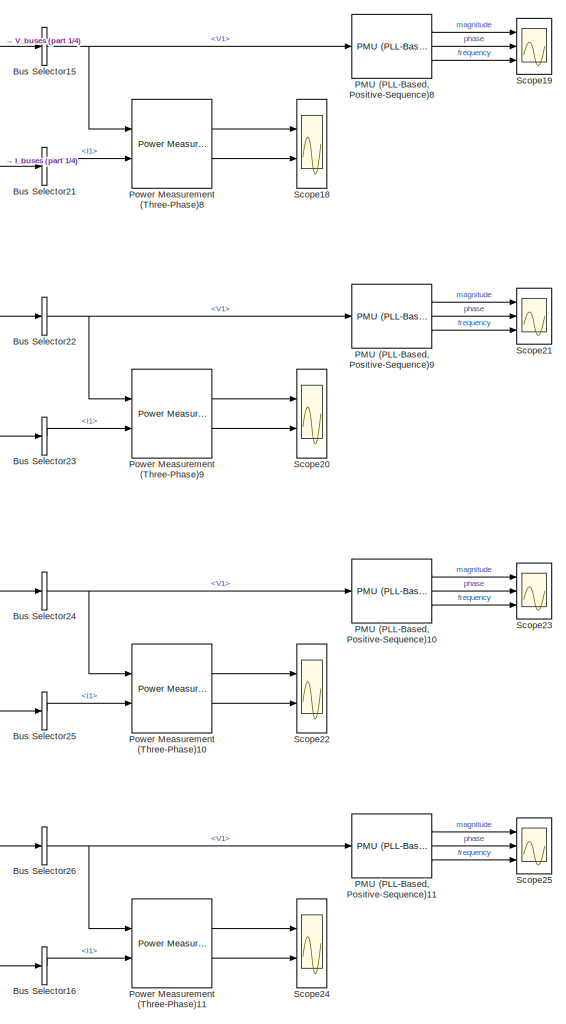
[diagram: Network scopes - part 3/4, bottom center region]
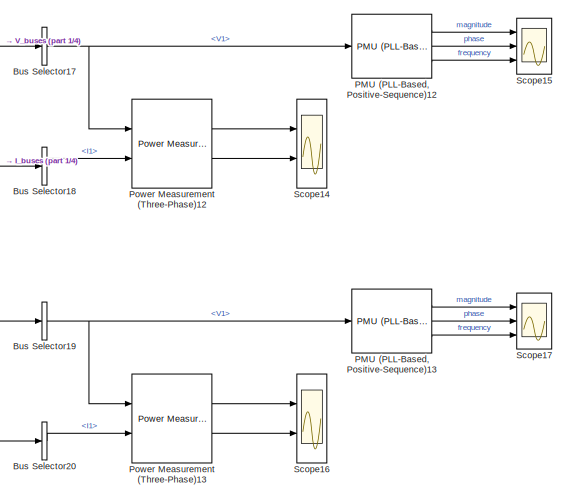
[diagram: Network scopes - part 4/4, bottom center region]
BLOCK [SubSystem] Network scopes
  Commented = on
  Ports = [2]
  RequestExecContextInheritance = off
BLOCK [BusSelector] Network scopes/Bus Selector1
  OutputSignals = V2
  Ports = [1, 1]
BLOCK [BusSelector] Network scopes/Bus Selector10
  Commented = on
  OutputSignals = I1
  Ports = [1, 1]
BLOCK [BusSelector] Network scopes/Bus Selector11
  Commented = on
  OutputSignals = V1
  Ports = [1, 1]
BLOCK [BusSelector] Network scopes/Bus Selector12
  Commented = on
  OutputSignals = I1
  Ports = [1, 1]
BLOCK [BusSelector] Network scopes/Bus Selector13
  Commented = on
  OutputSignals = V1
  Ports = [1, 1]
BLOCK [BusSelector] Network scopes/Bus Selector14
  Commented = on
  OutputSignals = I1
  Ports = [1, 1]
BLOCK [BusSelector] Network scopes/Bus Selector15
  Commented = on
  OutputSignals = V1
  Ports = [1, 1]
BLOCK [BusSelector] Network scopes/Bus Selector16
  Commented = on
  OutputSignals = I1
  Ports = [1, 1]
BLOCK [BusSelector] Network scopes/Bus Selector17
  Commented = on
  OutputSignals = V1
  Ports = [1, 1]
BLOCK [BusSelector] Network scopes/Bus Selector18
  Commented = on
  OutputSignals = I1
  Ports = [1, 1]
BLOCK [BusSelector] Network scopes/Bus Selector19
  Commented = on
  OutputSignals = V1
  Ports = [1, 1]
BLOCK [BusSelector] Network scopes/Bus Selector2
  OutputSignals = I2
  Ports = [1, 1]
BLOCK [BusSelector] Network scopes/Bus Selector20
  Commented = on
  OutputSignals = I1
  Ports = [1, 1]
BLOCK [BusSelector] Network scopes/Bus Selector21
  Commented = on
  OutputSignals = I1
  Ports = [1, 1]
BLOCK [BusSelector] Network scopes/Bus Selector22
  Commented = on
  OutputSignals = V1
  Ports = [1, 1]
BLOCK [BusSelector] Network scopes/Bus Selector23
  Commented = on
  OutputSignals = I1
  Ports = [1, 1]
BLOCK [BusSelector] Network scopes/Bus Selector24
  Commented = on
  OutputSignals = V1
  Ports = [1, 1]
BLOCK [BusSelector] Network scopes/Bus Selector25
  Commented = on
  OutputSignals = I1
  Ports = [1, 1]
BLOCK [BusSelector] Network scopes/Bus Selector26
  Commented = on
  OutputSignals = V1
  Ports = [1, 1]
BLOCK [BusSelector] Network scopes/Bus Selector3
  OutputSignals = V3
  Ports = [1, 1]
BLOCK [BusSelector] Network scopes/Bus Selector4
  OutputSignals = V1
  Ports = [1, 1]
BLOCK [BusSelector] Network scopes/Bus Selector5
  OutputSignals = I1
  Ports = [1, 1]
BLOCK [BusSelector] Network scopes/Bus Selector6
  OutputSignals = I3
  Ports = [1, 1]
BLOCK [BusSelector] Network scopes/Bus Selector7
  OutputSignals = V4
  Ports = [1, 1]
BLOCK [BusSelector] Network scopes/Bus Selector8
  OutputSignals = I4
  Ports = [1, 1]
BLOCK [BusSelector] Network scopes/Bus Selector9
  Commented = on
  OutputSignals = V1
  Ports = [1, 1]
BLOCK [Inport] Network scopes/I_buses
  Port = 2
BLOCK [Reference] Network scopes/PMU (PLL-Based, Positive-Sequence)1  REF=powerlib_meascontrol/Measurements/PMU
(PLL-Based,
Positive-Sequence)
  Ports = [1, 3]
  SourceBlock = powerlib_meascontrol/Measurements/PMU\n(PLL-Based,\nPositive-Sequence)
  SourceProductBaseCode = PS
  SourceType = PMU (PLL-Based, Positive-Sequence)
BLOCK [Reference] Network scopes/PMU (PLL-Based, Positive-Sequence)10  REF=powerlib_meascontrol/Measurements/PMU
(PLL-Based,
Positive-Sequence)
  Commented = on
  Ports = [1, 3]
  SourceBlock = powerlib_meascontrol/Measurements/PMU\n(PLL-Based,\nPositive-Sequence)
  SourceProductBaseCode = PS
  SourceType = PMU (PLL-Based, Positive-Sequence)
BLOCK [Reference] Network scopes/PMU (PLL-Based, Positive-Sequence)11  REF=powerlib_meascontrol/Measurements/PMU
(PLL-Based,
Positive-Sequence)
  Commented = on
  Ports = [1, 3]
  SourceBlock = powerlib_meascontrol/Measurements/PMU\n(PLL-Based,\nPositive-Sequence)
  SourceProductBaseCode = PS
  SourceType = PMU (PLL-Based, Positive-Sequence)
BLOCK [Reference] Network scopes/PMU (PLL-Based, Positive-Sequence)12  REF=powerlib_meascontrol/Measurements/PMU
(PLL-Based,
Positive-Sequence)
  Commented = on
  Ports = [1, 3]
  SourceBlock = powerlib_meascontrol/Measurements/PMU\n(PLL-Based,\nPositive-Sequence)
  SourceProductBaseCode = PS
  SourceType = PMU (PLL-Based, Positive-Sequence)
BLOCK [Reference] Network scopes/PMU (PLL-Based, Positive-Sequence)13  REF=powerlib_meascontrol/Measurements/PMU
(PLL-Based,
Positive-Sequence)
  Commented = on
  Ports = [1, 3]
  SourceBlock = powerlib_meascontrol/Measurements/PMU\n(PLL-Based,\nPositive-Sequence)
  SourceProductBaseCode = PS
  SourceType = PMU (PLL-Based, Positive-Sequence)
BLOCK [Reference] Network scopes/PMU (PLL-Based, Positive-Sequence)2  REF=powerlib_meascontrol/Measurements/PMU
(PLL-Based,
Positive-Sequence)
  Ports = [1, 3]
  SourceBlock = powerlib_meascontrol/Measurements/PMU\n(PLL-Based,\nPositive-Sequence)
  SourceProductBaseCode = PS
  SourceType = PMU (PLL-Based, Positive-Sequence)
BLOCK [Reference] Network scopes/PMU (PLL-Based, Positive-Sequence)3  REF=powerlib_meascontrol/Measurements/PMU
(PLL-Based,
Positive-Sequence)
  Ports = [1, 3]
  SourceBlock = powerlib_meascontrol/Measurements/PMU\n(PLL-Based,\nPositive-Sequence)
  SourceProductBaseCode = PS
  SourceType = PMU (PLL-Based, Positive-Sequence)
BLOCK [Reference] Network scopes/PMU (PLL-Based, Positive-Sequence)4  REF=powerlib_meascontrol/Measurements/PMU
(PLL-Based,
Positive-Sequence)
  Ports = [1, 3]
  SourceBlock = powerlib_meascontrol/Measurements/PMU\n(PLL-Based,\nPositive-Sequence)
  SourceProductBaseCode = PS
  SourceType = PMU (PLL-Based, Positive-Sequence)
BLOCK [Reference] Network scopes/PMU (PLL-Based, Positive-Sequence)5  REF=powerlib_meascontrol/Measurements/PMU
(PLL-Based,
Positive-Sequence)
  Commented = on
  Ports = [1, 3]
  SourceBlock = powerlib_meascontrol/Measurements/PMU\n(PLL-Based,\nPositive-Sequence)
  SourceProductBaseCode = PS
  SourceType = PMU (PLL-Based, Positive-Sequence)
BLOCK [Reference] Network scopes/PMU (PLL-Based, Positive-Sequence)6  REF=powerlib_meascontrol/Measurements/PMU
(PLL-Based,
Positive-Sequence)
  Commented = on
  Ports = [1, 3]
  SourceBlock = powerlib_meascontrol/Measurements/PMU\n(PLL-Based,\nPositive-Sequence)
  SourceProductBaseCode = PS
  SourceType = PMU (PLL-Based, Positive-Sequence)
BLOCK [Reference] Network scopes/PMU (PLL-Based, Positive-Sequence)7  REF=powerlib_meascontrol/Measurements/PMU
(PLL-Based,
Positive-Sequence)
  Commented = on
  Ports = [1, 3]
  SourceBlock = powerlib_meascontrol/Measurements/PMU\n(PLL-Based,\nPositive-Sequence)
  SourceProductBaseCode = PS
  SourceType = PMU (PLL-Based, Positive-Sequence)
BLOCK [Reference] Network scopes/PMU (PLL-Based, Positive-Sequence)8  REF=powerlib_meascontrol/Measurements/PMU
(PLL-Based,
Positive-Sequence)
  Commented = on
  Ports = [1, 3]
  SourceBlock = powerlib_meascontrol/Measurements/PMU\n(PLL-Based,\nPositive-Sequence)
  SourceProductBaseCode = PS
  SourceType = PMU (PLL-Based, Positive-Sequence)
BLOCK [Reference] Network scopes/PMU (PLL-Based, Positive-Sequence)9  REF=powerlib_meascontrol/Measurements/PMU
(PLL-Based,
Positive-Sequence)
  Commented = on
  Ports = [1, 3]
  SourceBlock = powerlib_meascontrol/Measurements/PMU\n(PLL-Based,\nPositive-Sequence)
  SourceProductBaseCode = PS
  SourceType = PMU (PLL-Based, Positive-Sequence)
BLOCK [Reference] Network scopes/Power Measurement (Three-Phase)1  REF=eePowerMeasurement/Power Measurement
(Three-Phase)
  Ports = [2, 2]
  SourceBlock = eePowerMeasurement/Power Measurement\n(Three-Phase)
  SourceProductBaseCode = PS
  SourceType = Power Measurement (Three-Phase)
BLOCK [Reference] Network scopes/Power Measurement (Three-Phase)10  REF=eePowerMeasurement/Power Measurement
(Three-Phase)
  Commented = on
  Ports = [2, 2]
  SourceBlock = eePowerMeasurement/Power Measurement\n(Three-Phase)
  SourceProductBaseCode = PS
  SourceType = Power Measurement (Three-Phase)
BLOCK [Reference] Network scopes/Power Measurement (Three-Phase)11  REF=eePowerMeasurement/Power Measurement
(Three-Phase)
  Commented = on
  Ports = [2, 2]
  SourceBlock = eePowerMeasurement/Power Measurement\n(Three-Phase)
  SourceProductBaseCode = PS
  SourceType = Power Measurement (Three-Phase)
BLOCK [Reference] Network scopes/Power Measurement (Three-Phase)12  REF=eePowerMeasurement/Power Measurement
(Three-Phase)
  Commented = on
  Ports = [2, 2]
  SourceBlock = eePowerMeasurement/Power Measurement\n(Three-Phase)
  SourceProductBaseCode = PS
  SourceType = Power Measurement (Three-Phase)
BLOCK [Reference] Network scopes/Power Measurement (Three-Phase)13  REF=eePowerMeasurement/Power Measurement
(Three-Phase)
  Commented = on
  Ports = [2, 2]
  SourceBlock = eePowerMeasurement/Power Measurement\n(Three-Phase)
  SourceProductBaseCode = PS
  SourceType = Power Measurement (Three-Phase)
BLOCK [Reference] Network scopes/Power Measurement (Three-Phase)2  REF=eePowerMeasurement/Power Measurement
(Three-Phase)
  Ports = [2, 2]
  SourceBlock = eePowerMeasurement/Power Measurement\n(Three-Phase)
  SourceProductBaseCode = PS
  SourceType = Power Measurement (Three-Phase)
BLOCK [Reference] Network scopes/Power Measurement (Three-Phase)3  REF=eePowerMeasurement/Power Measurement
(Three-Phase)
  Ports = [2, 2]
  SourceBlock = eePowerMeasurement/Power Measurement\n(Three-Phase)
  SourceProductBaseCode = PS
  SourceType = Power Measurement (Three-Phase)
BLOCK [Reference] Network scopes/Power Measurement (Three-Phase)4  REF=eePowerMeasurement/Power Measurement
(Three-Phase)
  Ports = [2, 2]
  SourceBlock = eePowerMeasurement/Power Measurement\n(Three-Phase)
  SourceProductBaseCode = PS
  SourceType = Power Measurement (Three-Phase)
BLOCK [Reference] Network scopes/Power Measurement (Three-Phase)5  REF=eePowerMeasurement/Power Measurement
(Three-Phase)
  Commented = on
  Ports = [2, 2]
  SourceBlock = eePowerMeasurement/Power Measurement\n(Three-Phase)
  SourceProductBaseCode = PS
  SourceType = Power Measurement (Three-Phase)
BLOCK [Reference] Network scopes/Power Measurement (Three-Phase)6  REF=eePowerMeasurement/Power Measurement
(Three-Phase)
  Commented = on
  Ports = [2, 2]
  SourceBlock = eePowerMeasurement/Power Measurement\n(Three-Phase)
  SourceProductBaseCode = PS
  SourceType = Power Measurement (Three-Phase)
BLOCK [Reference] Network scopes/Power Measurement (Three-Phase)7  REF=eePowerMeasurement/Power Measurement
(Three-Phase)
  Commented = on
  Ports = [2, 2]
  SourceBlock = eePowerMeasurement/Power Measurement\n(Three-Phase)
  SourceProductBaseCode = PS
  SourceType = Power Measurement (Three-Phase)
BLOCK [Reference] Network scopes/Power Measurement (Three-Phase)8  REF=eePowerMeasurement/Power Measurement
(Three-Phase)
  Commented = on
  Ports = [2, 2]
  SourceBlock = eePowerMeasurement/Power Measurement\n(Three-Phase)
  SourceProductBaseCode = PS
  SourceType = Power Measurement (Three-Phase)
BLOCK [Reference] Network scopes/Power Measurement (Three-Phase)9  REF=eePowerMeasurement/Power Measurement
(Three-Phase)
  Commented = on
  Ports = [2, 2]
  SourceBlock = eePowerMeasurement/Power Measurement\n(Three-Phase)
  SourceProductBaseCode = PS
  SourceType = Power Measurement (Three-Phase)
BLOCK [Scope] Network scopes/Scope
  Floating = off
  NumInputPorts = 2
  Ports = [2]
  ScopeSpecificationString = Simulink.scopes.TimeScopeBlockCfg('CurrentConfiguration', extmgr.ConfigurationSet(extmgr.Configuration('Core','General UI',true),extmgr.Configuration('Core','Source UI',true),extmgr.Configuration('Sources','WiredSimulink',true,'DataLoggingVariableName','ScopeData1'),extmgr.Configuration('Visuals','Time Domain',true,'SerializedDisplays',{struct('MinYLimReal','-7615330.53336','MaxYLimReal','-7468528...<+2185ch>
BLOCK [Scope] Network scopes/Scope1
  Floating = off
  NumInputPorts = 3
  Ports = [3]
  ScopeSpecificationString = Simulink.scopes.TimeScopeBlockCfg('CurrentConfiguration', extmgr.ConfigurationSet(extmgr.Configuration('Core','General UI',true),extmgr.Configuration('Core','Source UI',true),extmgr.Configuration('Sources','WiredSimulink',true,'DataLoggingVariableName','ScopeData2'),extmgr.Configuration('Visuals','Time Domain',true,'SerializedDisplays',{struct('MinYLimReal','-11225.24987','MaxYLimReal','101037.248...<+2774ch>
BLOCK [Scope] Network scopes/Scope10
  Commented = on
  Floating = off
  NumInputPorts = 2
  Ports = [2]
  ScopeSpecificationString = Simulink.scopes.TimeScopeBlockCfg('CurrentConfiguration', extmgr.ConfigurationSet(extmgr.Configuration('Core','General UI',true),extmgr.Configuration('Core','Source UI',true),extmgr.Configuration('Sources','WiredSimulink',true,'DataLoggingVariableName','ScopeData9'),extmgr.Configuration('Visuals','Time Domain',true),extmgr.Configuration('Tools','Plot Navigation',true),extmgr.Configuration('Tools',...<+40ch>
BLOCK [Scope] Network scopes/Scope11
  Commented = on
  Floating = off
  NumInputPorts = 3
  Ports = [3]
  ScopeSpecificationString = Simulink.scopes.TimeScopeBlockCfg('CurrentConfiguration', extmgr.ConfigurationSet(extmgr.Configuration('Core','General UI',true),extmgr.Configuration('Core','Source UI',true),extmgr.Configuration('Sources','WiredSimulink',true,'DataLoggingVariableName','ScopeData10'),extmgr.Configuration('Visuals','Time Domain',true),extmgr.Configuration('Tools','Plot Navigation',true),extmgr.Configuration('Tools'...<+41ch>
BLOCK [Scope] Network scopes/Scope12
  Commented = on
  Floating = off
  NumInputPorts = 2
  Ports = [2]
  ScopeSpecificationString = Simulink.scopes.TimeScopeBlockCfg('CurrentConfiguration', extmgr.ConfigurationSet(extmgr.Configuration('Core','General UI',true),extmgr.Configuration('Core','Source UI',true),extmgr.Configuration('Sources','WiredSimulink',true,'DataLoggingVariableName','ScopeData11'),extmgr.Configuration('Visuals','Time Domain',true),extmgr.Configuration('Tools','Plot Navigation',true),extmgr.Configuration('Tools'...<+41ch>
BLOCK [Scope] Network scopes/Scope13
  Commented = on
  Floating = off
  NumInputPorts = 3
  Ports = [3]
  ScopeSpecificationString = Simulink.scopes.TimeScopeBlockCfg('CurrentConfiguration', extmgr.ConfigurationSet(extmgr.Configuration('Core','General UI',true),extmgr.Configuration('Core','Source UI',true),extmgr.Configuration('Sources','WiredSimulink',true,'DataLoggingVariableName','ScopeData12'),extmgr.Configuration('Visuals','Time Domain',true),extmgr.Configuration('Tools','Plot Navigation',true),extmgr.Configuration('Tools'...<+41ch>
BLOCK [Scope] Network scopes/Scope14
  Commented = on
  Floating = off
  NumInputPorts = 2
  Ports = [2]
  ScopeSpecificationString = Simulink.scopes.TimeScopeBlockCfg('CurrentConfiguration', extmgr.ConfigurationSet(extmgr.Configuration('Core','General UI',true),extmgr.Configuration('Core','Source UI',true),extmgr.Configuration('Sources','WiredSimulink',true,'DataLoggingVariableName','ScopeData15'),extmgr.Configuration('Visuals','Time Domain',true),extmgr.Configuration('Tools','Plot Navigation',true),extmgr.Configuration('Tools'...<+41ch>
BLOCK [Scope] Network scopes/Scope15
  Commented = on
  Floating = off
  NumInputPorts = 3
  Ports = [3]
  ScopeSpecificationString = Simulink.scopes.TimeScopeBlockCfg('CurrentConfiguration', extmgr.ConfigurationSet(extmgr.Configuration('Core','General UI',true),extmgr.Configuration('Core','Source UI',true),extmgr.Configuration('Sources','WiredSimulink',true,'DataLoggingVariableName','ScopeData16'),extmgr.Configuration('Visuals','Time Domain',true),extmgr.Configuration('Tools','Plot Navigation',true),extmgr.Configuration('Tools'...<+41ch>
BLOCK [Scope] Network scopes/Scope16
  Commented = on
  Floating = off
  NumInputPorts = 2
  Ports = [2]
  ScopeSpecificationString = Simulink.scopes.TimeScopeBlockCfg('CurrentConfiguration', extmgr.ConfigurationSet(extmgr.Configuration('Core','General UI',true),extmgr.Configuration('Core','Source UI',true),extmgr.Configuration('Sources','WiredSimulink',true,'DataLoggingVariableName','ScopeData17'),extmgr.Configuration('Visuals','Time Domain',true),extmgr.Configuration('Tools','Plot Navigation',true),extmgr.Configuration('Tools'...<+41ch>
BLOCK [Scope] Network scopes/Scope17
  Commented = on
  Floating = off
  NumInputPorts = 3
  Ports = [3]
  ScopeSpecificationString = Simulink.scopes.TimeScopeBlockCfg('CurrentConfiguration', extmgr.ConfigurationSet(extmgr.Configuration('Core','General UI',true),extmgr.Configuration('Core','Source UI',true),extmgr.Configuration('Sources','WiredSimulink',true,'DataLoggingVariableName','ScopeData18'),extmgr.Configuration('Visuals','Time Domain',true),extmgr.Configuration('Tools','Plot Navigation',true),extmgr.Configuration('Tools'...<+41ch>
BLOCK [Scope] Network scopes/Scope18
  Commented = on
  Floating = off
  NumInputPorts = 2
  Ports = [2]
  ScopeSpecificationString = Simulink.scopes.TimeScopeBlockCfg('CurrentConfiguration', extmgr.ConfigurationSet(extmgr.Configuration('Core','General UI',true),extmgr.Configuration('Core','Source UI',true),extmgr.Configuration('Sources','WiredSimulink',true,'DataLoggingVariableName','ScopeData19'),extmgr.Configuration('Visuals','Time Domain',true),extmgr.Configuration('Tools','Plot Navigation',true),extmgr.Configuration('Tools'...<+41ch>
BLOCK [Scope] Network scopes/Scope19
  Commented = on
  Floating = off
  NumInputPorts = 3
  Ports = [3]
  ScopeSpecificationString = Simulink.scopes.TimeScopeBlockCfg('CurrentConfiguration', extmgr.ConfigurationSet(extmgr.Configuration('Core','General UI',true),extmgr.Configuration('Core','Source UI',true),extmgr.Configuration('Sources','WiredSimulink',true,'DataLoggingVariableName','ScopeData20'),extmgr.Configuration('Visuals','Time Domain',true),extmgr.Configuration('Tools','Plot Navigation',true),extmgr.Configuration('Tools'...<+41ch>
BLOCK [Scope] Network scopes/Scope2
  Floating = off
  NumInputPorts = 2
  Ports = [2]
  ScopeSpecificationString = Simulink.scopes.TimeScopeBlockCfg('CurrentConfiguration', extmgr.ConfigurationSet(extmgr.Configuration('Core','General UI',true),extmgr.Configuration('Core','Source UI',true),extmgr.Configuration('Sources','WiredSimulink',true,'DataLoggingVariableName','ScopeData3'),extmgr.Configuration('Visuals','Time Domain',true),extmgr.Configuration('Tools','Plot Navigation',true),extmgr.Configuration('Tools',...<+40ch>
BLOCK [Scope] Network scopes/Scope20
  Commented = on
  Floating = off
  NumInputPorts = 2
  Ports = [2]
  ScopeSpecificationString = Simulink.scopes.TimeScopeBlockCfg('CurrentConfiguration', extmgr.ConfigurationSet(extmgr.Configuration('Core','General UI',true),extmgr.Configuration('Core','Source UI',true),extmgr.Configuration('Sources','WiredSimulink',true,'DataLoggingVariableName','ScopeData21'),extmgr.Configuration('Visuals','Time Domain',true),extmgr.Configuration('Tools','Plot Navigation',true),extmgr.Configuration('Tools'...<+41ch>
BLOCK [Scope] Network scopes/Scope21
  Commented = on
  Floating = off
  NumInputPorts = 3
  Ports = [3]
  ScopeSpecificationString = Simulink.scopes.TimeScopeBlockCfg('CurrentConfiguration', extmgr.ConfigurationSet(extmgr.Configuration('Core','General UI',true),extmgr.Configuration('Core','Source UI',true),extmgr.Configuration('Sources','WiredSimulink',true,'DataLoggingVariableName','ScopeData22'),extmgr.Configuration('Visuals','Time Domain',true),extmgr.Configuration('Tools','Plot Navigation',true),extmgr.Configuration('Tools'...<+41ch>
BLOCK [Scope] Network scopes/Scope22
  Commented = on
  Floating = off
  NumInputPorts = 2
  Ports = [2]
  ScopeSpecificationString = Simulink.scopes.TimeScopeBlockCfg('CurrentConfiguration', extmgr.ConfigurationSet(extmgr.Configuration('Core','General UI',true),extmgr.Configuration('Core','Source UI',true),extmgr.Configuration('Sources','WiredSimulink',true,'DataLoggingVariableName','ScopeData23'),extmgr.Configuration('Visuals','Time Domain',true),extmgr.Configuration('Tools','Plot Navigation',true),extmgr.Configuration('Tools'...<+41ch>
BLOCK [Scope] Network scopes/Scope23
  Commented = on
  Floating = off
  NumInputPorts = 3
  Ports = [3]
  ScopeSpecificationString = Simulink.scopes.TimeScopeBlockCfg('CurrentConfiguration', extmgr.ConfigurationSet(extmgr.Configuration('Core','General UI',true),extmgr.Configuration('Core','Source UI',true),extmgr.Configuration('Sources','WiredSimulink',true,'DataLoggingVariableName','ScopeData24'),extmgr.Configuration('Visuals','Time Domain',true),extmgr.Configuration('Tools','Plot Navigation',true),extmgr.Configuration('Tools'...<+41ch>
BLOCK [Scope] Network scopes/Scope24
  Commented = on
  Floating = off
  NumInputPorts = 2
  Ports = [2]
  ScopeSpecificationString = Simulink.scopes.TimeScopeBlockCfg('CurrentConfiguration', extmgr.ConfigurationSet(extmgr.Configuration('Core','General UI',true),extmgr.Configuration('Core','Source UI',true),extmgr.Configuration('Sources','WiredSimulink',true,'DataLoggingVariableName','ScopeData25'),extmgr.Configuration('Visuals','Time Domain',true),extmgr.Configuration('Tools','Plot Navigation',true),extmgr.Configuration('Tools'...<+41ch>
BLOCK [Scope] Network scopes/Scope25
  Commented = on
  Floating = off
  NumInputPorts = 3
  Ports = [3]
  ScopeSpecificationString = Simulink.scopes.TimeScopeBlockCfg('CurrentConfiguration', extmgr.ConfigurationSet(extmgr.Configuration('Core','General UI',true),extmgr.Configuration('Core','Source UI',true),extmgr.Configuration('Sources','WiredSimulink',true,'DataLoggingVariableName','ScopeData26'),extmgr.Configuration('Visuals','Time Domain',true),extmgr.Configuration('Tools','Plot Navigation',true),extmgr.Configuration('Tools'...<+41ch>
BLOCK [Scope] Network scopes/Scope3
  Floating = off
  NumInputPorts = 3
  Ports = [3]
  ScopeSpecificationString = Simulink.scopes.TimeScopeBlockCfg('CurrentConfiguration', extmgr.ConfigurationSet(extmgr.Configuration('Core','General UI',true),extmgr.Configuration('Core','Source UI',true),extmgr.Configuration('Sources','WiredSimulink',true,'DataLoggingVariableName','ScopeData4'),extmgr.Configuration('Visuals','Time Domain',true,'SerializedDisplays',{struct('MinYLimReal','-2142.03925','MaxYLimReal','19288.35329...<+2744ch>
BLOCK [Scope] Network scopes/Scope4
  Floating = off
  NumInputPorts = 2
  Ports = [2]
  ScopeSpecificationString = Simulink.scopes.TimeScopeBlockCfg('CurrentConfiguration', extmgr.ConfigurationSet(extmgr.Configuration('Core','General UI',true),extmgr.Configuration('Core','Source UI',true),extmgr.Configuration('Sources','WiredSimulink',true,'DataLoggingVariableName','ScopeData5'),extmgr.Configuration('Visuals','Time Domain',true,'SerializedDisplays',{struct('MinYLimReal','-4776022.43947','MaxYLimReal','-4772467...<+2156ch>
BLOCK [Scope] Network scopes/Scope5
  Floating = off
  NumInputPorts = 3
  Ports = [3]
  ScopeSpecificationString = Simulink.scopes.TimeScopeBlockCfg('CurrentConfiguration', extmgr.ConfigurationSet(extmgr.Configuration('Core','General UI',true),extmgr.Configuration('Core','Source UI',true),extmgr.Configuration('Sources','WiredSimulink',true,'DataLoggingVariableName','ScopeData6'),extmgr.Configuration('Visuals','Time Domain',true),extmgr.Configuration('Tools','Plot Navigation',true),extmgr.Configuration('Tools',...<+40ch>
BLOCK [Scope] Network scopes/Scope6
  Floating = off
  NumInputPorts = 2
  Ports = [2]
  ScopeSpecificationString = Simulink.scopes.TimeScopeBlockCfg('CurrentConfiguration', extmgr.ConfigurationSet(extmgr.Configuration('Core','General UI',true),extmgr.Configuration('Core','Source UI',true),extmgr.Configuration('Sources','WiredSimulink',true,'DataLoggingVariableName','ScopeData7'),extmgr.Configuration('Visuals','Time Domain',true),extmgr.Configuration('Tools','Plot Navigation',true),extmgr.Configuration('Tools',...<+40ch>
BLOCK [Scope] Network scopes/Scope7
  Floating = off
  NumInputPorts = 3
  Ports = [3]
  ScopeSpecificationString = Simulink.scopes.TimeScopeBlockCfg('CurrentConfiguration', extmgr.ConfigurationSet(extmgr.Configuration('Core','General UI',true),extmgr.Configuration('Core','Source UI',true),extmgr.Configuration('Sources','WiredSimulink',true,'DataLoggingVariableName','ScopeData8'),extmgr.Configuration('Visuals','Time Domain',true),extmgr.Configuration('Tools','Plot Navigation',true),extmgr.Configuration('Tools',...<+40ch>
BLOCK [Scope] Network scopes/Scope8
  Commented = on
  Floating = off
  NumInputPorts = 2
  Ports = [2]
  ScopeSpecificationString = Simulink.scopes.TimeScopeBlockCfg('CurrentConfiguration', extmgr.ConfigurationSet(extmgr.Configuration('Core','General UI',true),extmgr.Configuration('Core','Source UI',true),extmgr.Configuration('Sources','WiredSimulink',true,'DataLoggingVariableName','ScopeData13'),extmgr.Configuration('Visuals','Time Domain',true),extmgr.Configuration('Tools','Plot Navigation',true),extmgr.Configuration('Tools'...<+41ch>
BLOCK [Scope] Network scopes/Scope9
  Commented = on
  Floating = off
  NumInputPorts = 3
  Ports = [3]
  ScopeSpecificationString = Simulink.scopes.TimeScopeBlockCfg('CurrentConfiguration', extmgr.ConfigurationSet(extmgr.Configuration('Core','General UI',true),extmgr.Configuration('Core','Source UI',true),extmgr.Configuration('Sources','WiredSimulink',true,'DataLoggingVariableName','ScopeData14'),extmgr.Configuration('Visuals','Time Domain',true),extmgr.Configuration('Tools','Plot Navigation',true),extmgr.Configuration('Tools'...<+41ch>
BLOCK [Inport] Network scopes/V_buses
BLOCK [Goto] SM1_measurments
  GotoTag = SM1_measurements
  NameLocation = top
BLOCK [Reference] SM_1  REF=G2ELib_V1/Synchronous Machine Models/Simulink - Synchronous Machine - Full Controls
  Ports = [0, 1, 0, 0, 0, 3]
  SourceBlock = G2ELib_V1/Synchronous Machine Models/Simulink - Synchronous Machine - Full Controls
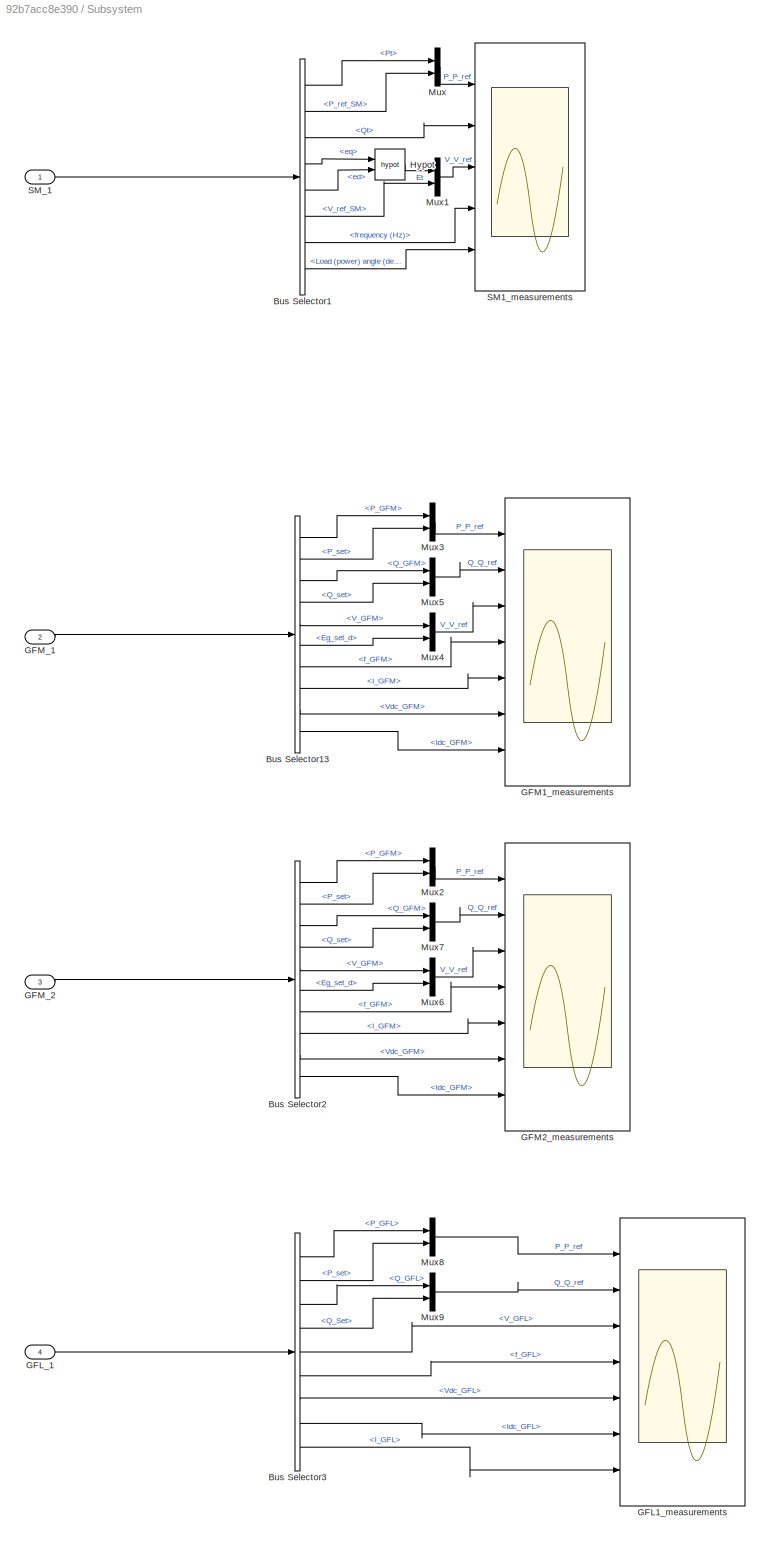
BLOCK [SubSystem] Subsystem
  Ports = [4]
  RequestExecContextInheritance = off
BLOCK [BusSelector] Subsystem/Bus Selector1
  OutputSignals = Terminal Powers (pu).Pt,References (P;V).P_ref_SM,Terminal Powers (pu).Qt,Terminal voltage dq-comp and field voltage (pu).eq,Terminal voltage dq-comp and field voltage (pu).ed,References (P;V).V_ref_SM,frequency (Hz),Load (power) angle (degrees)
  Ports = [1, 8]
BLOCK [BusSelector] Subsystem/Bus Selector13
  OutputSignals = P_GFM,Setpoints.P_set,Q_GFM,Setpoints.Q_set,V_GFM,Setpoints.Eg_set_d,f_GFM,I_GFM,Vdc_GFM,Idc_GFM
  Ports = [1, 10]
BLOCK [BusSelector] Subsystem/Bus Selector2
  OutputSignals = P_GFM,Setpoints.P_set,Q_GFM,Setpoints.Q_set,V_GFM,Setpoints.Eg_set_d,f_GFM,I_GFM,Vdc_GFM,Idc_GFM
  Ports = [1, 10]
BLOCK [BusSelector] Subsystem/Bus Selector3
  OutputSignals = P_GFL,Setpoints.P_set,Q_GFL,Setpoints.Q_Set,V_GFL,f_GFL,Vdc_GFL,Idc_GFL,I_GFL
  Ports = [1, 9]
BLOCK [Scope] Subsystem/GFL1_measurements
  Floating = off
  NumInputPorts = 7
  Ports = [7]
  ScopeSpecificationString = Simulink.scopes.TimeScopeBlockCfg('CurrentConfiguration', extmgr.ConfigurationSet(extmgr.Configuration('Core','General UI',true),extmgr.Configuration('Core','Source UI',true),extmgr.Configuration('Sources','WiredSimulink',true,'DataLoggingVariableName','ScopeData4'),extmgr.Configuration('Visuals','Time Domain',true,'SerializedDisplays',{struct('MinYLimReal','0.55286','MaxYLimReal','0.95522','YLabe...<+6231ch>
BLOCK [Inport] Subsystem/GFL_1
  Port = 4
BLOCK [Scope] Subsystem/GFM1_measurements
  Floating = off
  NumInputPorts = 7
  Ports = [7]
  ScopeSpecificationString = Simulink.scopes.TimeScopeBlockCfg('CurrentConfiguration', extmgr.ConfigurationSet(extmgr.Configuration('Core','General UI',true),extmgr.Configuration('Core','Source UI',true),extmgr.Configuration('Sources','WiredSimulink',true,'DataLoggingVariableName','ScopeData2'),extmgr.Configuration('Visuals','Time Domain',true,'SerializedDisplays',{struct('MinYLimReal','0.55272','MaxYLimReal','0.84336','YLabe...<+6247ch>
BLOCK [Scope] Subsystem/GFM2_measurements
  Floating = off
  NumInputPorts = 7
  Ports = [7]
  ScopeSpecificationString = Simulink.scopes.TimeScopeBlockCfg('CurrentConfiguration', extmgr.ConfigurationSet(extmgr.Configuration('Core','General UI',true),extmgr.Configuration('Core','Source UI',true),extmgr.Configuration('Sources','WiredSimulink',true,'DataLoggingVariableName','ScopeData3'),extmgr.Configuration('Visuals','Time Domain',true,'SerializedDisplays',{struct('MinYLimReal','0.55781','MaxYLimReal','0.79427','YLabe...<+6276ch>
BLOCK [Inport] Subsystem/GFM_1
  Port = 2
BLOCK [Inport] Subsystem/GFM_2
  Port = 3
BLOCK [Math] Subsystem/Hypot
  Operator = hypot
  Ports = [2, 1]
BLOCK [Mux] Subsystem/Mux
  DisplayOption = bar
  Inputs = 2
  Ports = [2, 1]
BLOCK [Mux] Subsystem/Mux1
  DisplayOption = bar
  Inputs = 2
  Ports = [2, 1]
BLOCK [Mux] Subsystem/Mux2
  DisplayOption = bar
  Inputs = 2
  Ports = [2, 1]
BLOCK [Mux] Subsystem/Mux3
  DisplayOption = bar
  Inputs = 2
  Ports = [2, 1]
BLOCK [Mux] Subsystem/Mux4
  DisplayOption = bar
  Inputs = 2
  Ports = [2, 1]
BLOCK [Mux] Subsystem/Mux5
  DisplayOption = bar
  Inputs = 2
  Ports = [2, 1]
BLOCK [Mux] Subsystem/Mux6
  DisplayOption = bar
  Inputs = 2
  Ports = [2, 1]
BLOCK [Mux] Subsystem/Mux7
  DisplayOption = bar
  Inputs = 2
  Ports = [2, 1]
BLOCK [Mux] Subsystem/Mux8
  DisplayOption = bar
  Inputs = 2
  Ports = [2, 1]
BLOCK [Mux] Subsystem/Mux9
  DisplayOption = bar
  Inputs = 2
  Ports = [2, 1]
BLOCK [Scope] Subsystem/SM1_measurements
  Floating = off
  NumInputPorts = 5
  Ports = [5]
  ScopeSpecificationString = Simulink.scopes.TimeScopeBlockCfg('CurrentConfiguration', extmgr.ConfigurationSet(extmgr.Configuration('Core','General UI',true),extmgr.Configuration('Core','Source UI',true),extmgr.Configuration('Sources','WiredSimulink',true,'DataLoggingVariableName','ScopeData1'),extmgr.Configuration('Visuals','Time Domain',true,'SerializedDisplays',{struct('MinYLimReal','0.74174','MaxYLimReal','0.96171','YLabe...<+4947ch>
BLOCK [Inport] Subsystem/SM_1
BLOCK [Reference] Transformer_1  REF=G2ELib_V1/Miscellaneous Network Elements/Transformer_i
  Ports = [0, 0, 0, 0, 0, 3, 3]
  SourceBlock = G2ELib_V1/Miscellaneous Network Elements/Transformer_i
  SourceType = Three-Phase Transformer (Two Windings)
BLOCK [Reference] Transformer_2  REF=G2ELib_V1/Miscellaneous Network Elements/Transformer_i
  Ports = [0, 0, 0, 0, 0, 3, 3]
  SourceBlock = G2ELib_V1/Miscellaneous Network Elements/Transformer_i
  SourceType = Three-Phase Transformer (Two Windings)
BLOCK [Reference] Transformer_3  REF=G2ELib_V1/Miscellaneous Network Elements/Transformer_i
  Ports = [0, 0, 0, 0, 0, 3, 3]
  SourceBlock = G2ELib_V1/Miscellaneous Network Elements/Transformer_i
  SourceType = Three-Phase Transformer (Two Windings)
BLOCK [Reference] Transformer_4  REF=G2ELib_V1/Miscellaneous Network Elements/Transformer_i
  Ports = [0, 0, 0, 0, 0, 3, 3]
  SourceBlock = G2ELib_V1/Miscellaneous Network Elements/Transformer_i
  SourceType = Three-Phase Transformer (Two Windings)
BLOCK [Reference] powergui  REF=powerlib/powergui
  Ports = []
  Priority = 1
  SourceBlock = powerlib/powergui
  SourceProductBaseCode = PS
  SourceType = PSB option menu block
LINE Bus Creator1:1 -> Goto14:1
LINE Bus Creator:1 -> Goto13:1
LINE Bus Selector10:1 -> Mux:11
LINE Bus Selector10:2 -> Mux1:11
LINE Bus Selector11:1 -> Mux:12
LINE Bus Selector11:2 -> Mux1:12
LINE Bus Selector1:1 -> Mux:2
LINE Bus Selector1:2 -> Mux1:2
LINE Bus Selector2:1 -> Mux:3
LINE Bus Selector2:2 -> Mux1:3
LINE Bus Selector3:1 -> Mux:4
LINE Bus Selector3:2 -> Mux1:4
LINE Bus Selector4:1 -> Mux:5
LINE Bus Selector4:2 -> Mux1:5
LINE Bus Selector5:1 -> Mux:6
LINE Bus Selector5:2 -> Mux1:6
LINE Bus Selector6:1 -> Mux:7
LINE Bus Selector6:2 -> Mux1:7
LINE Bus Selector7:1 -> Mux:8
LINE Bus Selector7:2 -> Mux1:8
LINE Bus Selector8:1 -> Mux:9
LINE Bus Selector8:2 -> Mux1:9
LINE Bus Selector9:1 -> Mux:10
LINE Bus Selector9:2 -> Mux1:10
LINE Bus Selector:1 -> Mux:1
LINE Bus Selector:2 -> Mux1:1
LINE From10:1 -> Bus Selector9:1
LINE From11:1 -> Bus Selector10:1
LINE From12:1 -> Bus Selector11:1
LINE From13:1 -> Bus Creator:1
LINE From14:1 -> Bus Creator:2
LINE From15:1 -> Bus Creator:3
LINE From16:1 -> Bus Creator:4
LINE From17:1 -> Bus Creator:5
LINE From18:1 -> Bus Creator:6
LINE From19:1 -> Bus Creator:7
LINE From20:1 -> Bus Creator1:1
LINE From21:1 -> Bus Creator1:2
LINE From22:1 -> Bus Creator1:3
LINE From23:1 -> Bus Creator1:4
LINE From24:1 -> Bus Creator1:5
LINE From25:1 -> Bus Creator1:6
LINE From26:1 -> Bus Creator1:7
LINE From27:1 -> Bus Creator:8
LINE From28:1 -> Bus Creator:9
LINE From29:1 -> Bus Creator:10
LINE From2:1 -> Bus Selector1:1
LINE From30:1 -> Bus Creator:11
LINE From31:1 -> Bus Creator:12
LINE From32:1 -> Bus Creator:13
LINE From33:1 -> Bus Creator:14
LINE From34:1 -> Bus Creator:15
LINE From35:1 -> Bus Creator1:8
LINE From36:1 -> Bus Creator1:9
LINE From37:1 -> Bus Creator1:10
LINE From38:1 -> Bus Creator1:11
LINE From39:1 -> Bus Creator1:12
LINE From3:1 -> Bus Selector2:1
LINE From40:1 -> Bus Creator1:13
LINE From41:1 -> Bus Creator1:14
LINE From42:1 -> Bus Creator1:15
LINE From43:1 -> Network scopes:1
LINE From44:1 -> Network scopes:2
LINE From45:1 -> Subsystem:1
LINE From46:1 -> Subsystem:4
LINE From47:1 -> Subsystem:2
LINE From48:1 -> Subsystem:3
LINE From4:1 -> Bus Selector3:1
LINE From5:1 -> Bus Selector4:1
LINE From6:1 -> Bus Selector5:1
LINE From7:1 -> Bus Selector6:1
LINE From8:1 -> Bus Selector7:1
LINE From9:1 -> Bus Selector8:1
LINE From:1 -> Bus Selector:1
LINE GFL_1:1 -> GFL1_meas:1
LINE GFM_1:1 -> GFM1_meas:1
LINE GFM_2:1 -> GFM2_meas:1
LINE Load_10:1 -> Goto11:1
LINE Load_11:1 -> Goto12:1
LINE Load_12:1 -> Goto15:1
LINE Load_13:1 -> Goto16:1
LINE Load_1:1 -> Goto5:1
LINE Load_2:1 -> Goto2:1
LINE Load_3:1 -> Goto3:1
LINE Load_4:1 -> Goto4:1
LINE Load_5:1 -> Goto6:1
LINE Load_6:1 -> Goto7:1
LINE Load_7:1 -> Goto8:1
LINE Load_8:1 -> Goto9:1
LINE Load_9:1 -> Goto10:1
LINE Mux1:1 -> Loads scope:2
LINE Mux:1 -> Loads scope:1
LINE Network scopes/Bus Selector10:1 -> Network scopes/Power Measurement (Three-Phase)5:2
NET Network scopes/Bus Selector11:1 -> Network scopes/PMU (PLL-Based, Positive-Sequence)6:1, Network scopes/Power Measurement (Three-Phase)6:1
LINE Network scopes/Bus Selector12:1 -> Network scopes/Power Measurement (Three-Phase)6:2
NET Network scopes/Bus Selector13:1 -> Network scopes/PMU (PLL-Based, Positive-Sequence)7:1, Network scopes/Power Measurement (Three-Phase)7:1
LINE Network scopes/Bus Selector14:1 -> Network scopes/Power Measurement (Three-Phase)7:2
NET Network scopes/Bus Selector15:1 -> Network scopes/PMU (PLL-Based, Positive-Sequence)8:1, Network scopes/Power Measurement (Three-Phase)8:1
LINE Network scopes/Bus Selector16:1 -> Network scopes/Power Measurement (Three-Phase)11:2
NET Network scopes/Bus Selector17:1 -> Network scopes/PMU (PLL-Based, Positive-Sequence)12:1, Network scopes/Power Measurement (Three-Phase)12:1
LINE Network scopes/Bus Selector18:1 -> Network scopes/Power Measurement (Three-Phase)12:2
NET Network scopes/Bus Selector19:1 -> Network scopes/PMU (PLL-Based, Positive-Sequence)13:1, Network scopes/Power Measurement (Three-Phase)13:1
NET Network scopes/Bus Selector1:1 -> Network scopes/PMU (PLL-Based, Positive-Sequence)1:1, Network scopes/Power Measurement (Three-Phase)2:1
LINE Network scopes/Bus Selector20:1 -> Network scopes/Power Measurement (Three-Phase)13:2
LINE Network scopes/Bus Selector21:1 -> Network scopes/Power Measurement (Three-Phase)8:2
NET Network scopes/Bus Selector22:1 -> Network scopes/PMU (PLL-Based, Positive-Sequence)9:1, Network scopes/Power Measurement (Three-Phase)9:1
LINE Network scopes/Bus Selector23:1 -> Network scopes/Power Measurement (Three-Phase)9:2
NET Network scopes/Bus Selector24:1 -> Network scopes/PMU (PLL-Based, Positive-Sequence)10:1, Network scopes/Power Measurement (Three-Phase)10:1
LINE Network scopes/Bus Selector25:1 -> Network scopes/Power Measurement (Three-Phase)10:2
NET Network scopes/Bus Selector26:1 -> Network scopes/PMU (PLL-Based, Positive-Sequence)11:1, Network scopes/Power Measurement (Three-Phase)11:1
LINE Network scopes/Bus Selector2:1 -> Network scopes/Power Measurement (Three-Phase)2:2
NET Network scopes/Bus Selector3:1 -> Network scopes/PMU (PLL-Based, Positive-Sequence)2:1, Network scopes/Power Measurement (Three-Phase)3:1
NET Network scopes/Bus Selector4:1 -> Network scopes/PMU (PLL-Based, Positive-Sequence)3:1, Network scopes/Power Measurement (Three-Phase)1:1
LINE Network scopes/Bus Selector5:1 -> Network scopes/Power Measurement (Three-Phase)1:2
LINE Network scopes/Bus Selector6:1 -> Network scopes/Power Measurement (Three-Phase)3:2
NET Network scopes/Bus Selector7:1 -> Network scopes/PMU (PLL-Based, Positive-Sequence)4:1, Network scopes/Power Measurement (Three-Phase)4:1
LINE Network scopes/Bus Selector8:1 -> Network scopes/Power Measurement (Three-Phase)4:2
NET Network scopes/Bus Selector9:1 -> Network scopes/PMU (PLL-Based, Positive-Sequence)5:1, Network scopes/Power Measurement (Three-Phase)5:1
NET Network scopes/I_buses:1 -> Network scopes/Bus Selector10:1, Network scopes/Bus Selector12:1, Network scopes/Bus Selector14:1, Network scopes/Bus Selector16:1, Network scopes/Bus Selector18:1, Network scopes/Bus Selector20:1, Network scopes/Bus Selector21:1, Network scopes/Bus Selector23:1, Network scopes/Bus Selector25:1, Network scopes/Bus Selector2:1, Network scopes/Bus Selector5:1, Network scopes/Bus Selector6:1, Network scopes/Bus Selector8:1
LINE Network scopes/PMU (PLL-Based, Positive-Sequence)10:1 -> Network scopes/Scope23:1
LINE Network scopes/PMU (PLL-Based, Positive-Sequence)10:2 -> Network scopes/Scope23:2
LINE Network scopes/PMU (PLL-Based, Positive-Sequence)10:3 -> Network scopes/Scope23:3
LINE Network scopes/PMU (PLL-Based, Positive-Sequence)11:1 -> Network scopes/Scope25:1
LINE Network scopes/PMU (PLL-Based, Positive-Sequence)11:2 -> Network scopes/Scope25:2
LINE Network scopes/PMU (PLL-Based, Positive-Sequence)11:3 -> Network scopes/Scope25:3
LINE Network scopes/PMU (PLL-Based, Positive-Sequence)12:1 -> Network scopes/Scope15:1
LINE Network scopes/PMU (PLL-Based, Positive-Sequence)12:2 -> Network scopes/Scope15:2
LINE Network scopes/PMU (PLL-Based, Positive-Sequence)12:3 -> Network scopes/Scope15:3
LINE Network scopes/PMU (PLL-Based, Positive-Sequence)13:1 -> Network scopes/Scope17:1
LINE Network scopes/PMU (PLL-Based, Positive-Sequence)13:2 -> Network scopes/Scope17:2
LINE Network scopes/PMU (PLL-Based, Positive-Sequence)13:3 -> Network scopes/Scope17:3
LINE Network scopes/PMU (PLL-Based, Positive-Sequence)1:1 -> Network scopes/Scope3:1
LINE Network scopes/PMU (PLL-Based, Positive-Sequence)1:2 -> Network scopes/Scope3:2
LINE Network scopes/PMU (PLL-Based, Positive-Sequence)1:3 -> Network scopes/Scope3:3
LINE Network scopes/PMU (PLL-Based, Positive-Sequence)2:1 -> Network scopes/Scope5:1
LINE Network scopes/PMU (PLL-Based, Positive-Sequence)2:2 -> Network scopes/Scope5:2
LINE Network scopes/PMU (PLL-Based, Positive-Sequence)2:3 -> Network scopes/Scope5:3
LINE Network scopes/PMU (PLL-Based, Positive-Sequence)3:1 -> Network scopes/Scope1:1
LINE Network scopes/PMU (PLL-Based, Positive-Sequence)3:2 -> Network scopes/Scope1:2
LINE Network scopes/PMU (PLL-Based, Positive-Sequence)3:3 -> Network scopes/Scope1:3
LINE Network scopes/PMU (PLL-Based, Positive-Sequence)4:1 -> Network scopes/Scope7:1
LINE Network scopes/PMU (PLL-Based, Positive-Sequence)4:2 -> Network scopes/Scope7:2
LINE Network scopes/PMU (PLL-Based, Positive-Sequence)4:3 -> Network scopes/Scope7:3
LINE Network scopes/PMU (PLL-Based, Positive-Sequence)5:1 -> Network scopes/Scope9:1
LINE Network scopes/PMU (PLL-Based, Positive-Sequence)5:2 -> Network scopes/Scope9:2
LINE Network scopes/PMU (PLL-Based, Positive-Sequence)5:3 -> Network scopes/Scope9:3
LINE Network scopes/PMU (PLL-Based, Positive-Sequence)6:1 -> Network scopes/Scope11:1
LINE Network scopes/PMU (PLL-Based, Positive-Sequence)6:2 -> Network scopes/Scope11:2
LINE Network scopes/PMU (PLL-Based, Positive-Sequence)6:3 -> Network scopes/Scope11:3
LINE Network scopes/PMU (PLL-Based, Positive-Sequence)7:1 -> Network scopes/Scope13:1
LINE Network scopes/PMU (PLL-Based, Positive-Sequence)7:2 -> Network scopes/Scope13:2
LINE Network scopes/PMU (PLL-Based, Positive-Sequence)7:3 -> Network scopes/Scope13:3
LINE Network scopes/PMU (PLL-Based, Positive-Sequence)8:1 -> Network scopes/Scope19:1
LINE Network scopes/PMU (PLL-Based, Positive-Sequence)8:2 -> Network scopes/Scope19:2
LINE Network scopes/PMU (PLL-Based, Positive-Sequence)8:3 -> Network scopes/Scope19:3
LINE Network scopes/PMU (PLL-Based, Positive-Sequence)9:1 -> Network scopes/Scope21:1
LINE Network scopes/PMU (PLL-Based, Positive-Sequence)9:2 -> Network scopes/Scope21:2
LINE Network scopes/PMU (PLL-Based, Positive-Sequence)9:3 -> Network scopes/Scope21:3
LINE Network scopes/Power Measurement (Three-Phase)10:1 -> Network scopes/Scope22:1
LINE Network scopes/Power Measurement (Three-Phase)10:2 -> Network scopes/Scope22:2
LINE Network scopes/Power Measurement (Three-Phase)11:1 -> Network scopes/Scope24:1
LINE Network scopes/Power Measurement (Three-Phase)11:2 -> Network scopes/Scope24:2
LINE Network scopes/Power Measurement (Three-Phase)12:1 -> Network scopes/Scope14:1
LINE Network scopes/Power Measurement (Three-Phase)12:2 -> Network scopes/Scope14:2
LINE Network scopes/Power Measurement (Three-Phase)13:1 -> Network scopes/Scope16:1
LINE Network scopes/Power Measurement (Three-Phase)13:2 -> Network scopes/Scope16:2
LINE Network scopes/Power Measurement (Three-Phase)1:1 -> Network scopes/Scope:1
LINE Network scopes/Power Measurement (Three-Phase)1:2 -> Network scopes/Scope:2
LINE Network scopes/Power Measurement (Three-Phase)2:1 -> Network scopes/Scope2:1
LINE Network scopes/Power Measurement (Three-Phase)2:2 -> Network scopes/Scope2:2
LINE Network scopes/Power Measurement (Three-Phase)3:1 -> Network scopes/Scope4:1
LINE Network scopes/Power Measurement (Three-Phase)3:2 -> Network scopes/Scope4:2
LINE Network scopes/Power Measurement (Three-Phase)4:1 -> Network scopes/Scope6:1
LINE Network scopes/Power Measurement (Three-Phase)4:2 -> Network scopes/Scope6:2
LINE Network scopes/Power Measurement (Three-Phase)5:1 -> Network scopes/Scope8:1
LINE Network scopes/Power Measurement (Three-Phase)5:2 -> Network scopes/Scope8:2
LINE Network scopes/Power Measurement (Three-Phase)6:1 -> Network scopes/Scope10:1
LINE Network scopes/Power Measurement (Three-Phase)6:2 -> Network scopes/Scope10:2
LINE Network scopes/Power Measurement (Three-Phase)7:1 -> Network scopes/Scope12:1
LINE Network scopes/Power Measurement (Three-Phase)7:2 -> Network scopes/Scope12:2
LINE Network scopes/Power Measurement (Three-Phase)8:1 -> Network scopes/Scope18:1
LINE Network scopes/Power Measurement (Three-Phase)8:2 -> Network scopes/Scope18:2
LINE Network scopes/Power Measurement (Three-Phase)9:1 -> Network scopes/Scope20:1
LINE Network scopes/Power Measurement (Three-Phase)9:2 -> Network scopes/Scope20:2
NET Network scopes/V_buses:1 -> Network scopes/Bus Selector11:1, Network scopes/Bus Selector13:1, Network scopes/Bus Selector15:1, Network scopes/Bus Selector17:1, Network scopes/Bus Selector19:1, Network scopes/Bus Selector1:1, Network scopes/Bus Selector22:1, Network scopes/Bus Selector24:1, Network scopes/Bus Selector26:1, Network scopes/Bus Selector3:1, Network scopes/Bus Selector4:1, Network scopes/Bus Selector7:1, Network scopes/Bus Selector9:1
LINE SM_1:1 -> SM1_measurments:1
LINE Subsystem/Bus Selector13:1 -> Subsystem/Mux3:1
LINE Subsystem/Bus Selector13:10 -> Subsystem/GFM1_measurements:7
LINE Subsystem/Bus Selector13:2 -> Subsystem/Mux3:2
LINE Subsystem/Bus Selector13:3 -> Subsystem/Mux5:1
LINE Subsystem/Bus Selector13:4 -> Subsystem/Mux5:2
LINE Subsystem/Bus Selector13:5 -> Subsystem/Mux4:1
LINE Subsystem/Bus Selector13:6 -> Subsystem/Mux4:2
LINE Subsystem/Bus Selector13:7 -> Subsystem/GFM1_measurements:4
LINE Subsystem/Bus Selector13:8 -> Subsystem/GFM1_measurements:5
LINE Subsystem/Bus Selector13:9 -> Subsystem/GFM1_measurements:6
LINE Subsystem/Bus Selector1:1 -> Subsystem/Mux:1
LINE Subsystem/Bus Selector1:2 -> Subsystem/Mux:2
LINE Subsystem/Bus Selector1:3 -> Subsystem/SM1_measurements:2
LINE Subsystem/Bus Selector1:4 -> Subsystem/Hypot:1
LINE Subsystem/Bus Selector1:5 -> Subsystem/Hypot:2
LINE Subsystem/Bus Selector1:6 -> Subsystem/Mux1:2
LINE Subsystem/Bus Selector1:7 -> Subsystem/SM1_measurements:4
LINE Subsystem/Bus Selector1:8 -> Subsystem/SM1_measurements:5
LINE Subsystem/Bus Selector2:1 -> Subsystem/Mux2:1
LINE Subsystem/Bus Selector2:10 -> Subsystem/GFM2_measurements:7
LINE Subsystem/Bus Selector2:2 -> Subsystem/Mux2:2
LINE Subsystem/Bus Selector2:3 -> Subsystem/Mux7:1
LINE Subsystem/Bus Selector2:4 -> Subsystem/Mux7:2
LINE Subsystem/Bus Selector2:5 -> Subsystem/Mux6:1
LINE Subsystem/Bus Selector2:6 -> Subsystem/Mux6:2
LINE Subsystem/Bus Selector2:7 -> Subsystem/GFM2_measurements:4
LINE Subsystem/Bus Selector2:8 -> Subsystem/GFM2_measurements:5
LINE Subsystem/Bus Selector2:9 -> Subsystem/GFM2_measurements:6
LINE Subsystem/Bus Selector3:1 -> Subsystem/Mux8:1
LINE Subsystem/Bus Selector3:2 -> Subsystem/Mux8:2
LINE Subsystem/Bus Selector3:3 -> Subsystem/Mux9:1
LINE Subsystem/Bus Selector3:4 -> Subsystem/Mux9:2
LINE Subsystem/Bus Selector3:5 -> Subsystem/GFL1_measurements:3
LINE Subsystem/Bus Selector3:6 -> Subsystem/GFL1_measurements:4
LINE Subsystem/Bus Selector3:7 -> Subsystem/GFL1_measurements:5
LINE Subsystem/Bus Selector3:8 -> Subsystem/GFL1_measurements:6
LINE Subsystem/Bus Selector3:9 -> Subsystem/GFL1_measurements:7
LINE Subsystem/GFL_1:1 -> Subsystem/Bus Selector3:1
LINE Subsystem/GFM_1:1 -> Subsystem/Bus Selector13:1
LINE Subsystem/GFM_2:1 -> Subsystem/Bus Selector2:1
LINE Subsystem/Hypot:1 -> Subsystem/Mux1:1
LINE Subsystem/Mux1:1 -> Subsystem/SM1_measurements:3
LINE Subsystem/Mux2:1 -> Subsystem/GFM2_measurements:1
LINE Subsystem/Mux3:1 -> Subsystem/GFM1_measurements:1
LINE Subsystem/Mux4:1 -> Subsystem/GFM1_measurements:3
LINE Subsystem/Mux5:1 -> Subsystem/GFM1_measurements:2
LINE Subsystem/Mux6:1 -> Subsystem/GFM2_measurements:3
LINE Subsystem/Mux7:1 -> Subsystem/GFM2_measurements:2
LINE Subsystem/Mux8:1 -> Subsystem/GFL1_measurements:1
LINE Subsystem/Mux9:1 -> Subsystem/GFL1_measurements:2
LINE Subsystem/Mux:1 -> Subsystem/SM1_measurements:1
LINE Subsystem/SM_1:1 -> Subsystem/Bus Selector1:1
PNET net1: Bus_10:LConn1 -- Line_10:RConn1 -- Load_9:LConn1
PNET net2: Bus_10:LConn2 -- Line_10:RConn2 -- Load_9:LConn2
PNET net3: Bus_10:LConn3 -- Line_10:RConn3 -- Load_9:LConn3
PNET net4: Bus_10:RConn1 -- Line_9:LConn1 -- Load Flow Bus10:LConn1
PLINE Bus_10:RConn2 -- Line_9:LConn2
PLINE Bus_10:RConn3 -- Line_9:LConn3
PLINE Bus_11:LConn1 -- Load_10:LConn1
PLINE Bus_11:LConn2 -- Load_10:LConn2
PLINE Bus_11:LConn3 -- Load_10:LConn3
PNET net5: Bus_11:RConn1 -- Line_10:LConn1 -- Load Flow Bus11:LConn1
PLINE Bus_11:RConn2 -- Line_10:LConn2
PLINE Bus_11:RConn3 -- Line_10:LConn3
PLINE Bus_12:LConn1 -- Load_11:LConn1
PLINE Bus_12:LConn2 -- Load_11:LConn2
PLINE Bus_12:LConn3 -- Load_11:LConn3
PNET net6: Bus_12:RConn1 -- Line_11:LConn1 -- Line_13:RConn1 -- Load Flow Bus12:LConn1 -- Transformer_2:LConn1
PNET net7: Bus_12:RConn2 -- Line_11:LConn2 -- Line_13:RConn2 -- Transformer_2:LConn2
PNET net8: Bus_12:RConn3 -- Line_11:LConn3 -- Line_13:RConn3 -- Transformer_2:LConn3
PNET net9: Bus_13:LConn1 -- Line_11:RConn1 -- Load_12:LConn1
PNET net10: Bus_13:LConn2 -- Line_11:RConn2 -- Load_12:LConn2
PNET net11: Bus_13:LConn3 -- Line_11:RConn3 -- Load_12:LConn3
PNET net12: Bus_13:RConn1 -- Line_12:LConn1 -- Load Flow Bus13:LConn1
PLINE Bus_13:RConn2 -- Line_12:LConn2
PLINE Bus_13:RConn3 -- Line_12:LConn3
PNET net13: Bus_14:LConn1 -- Line_12:RConn1 -- Load Flow Bus14:LConn1
PLINE Bus_14:LConn2 -- Line_12:RConn2
PLINE Bus_14:LConn3 -- Line_12:RConn3
PLINE Bus_14:RConn1 -- Load_13:LConn1
PLINE Bus_14:RConn2 -- Load_13:LConn2
PLINE Bus_14:RConn3 -- Load_13:LConn3
PNET net14: Bus_15:LConn1 -- Load Flow Bus15:LConn1 -- Transformer_1:RConn1
PLINE Bus_15:LConn2 -- Transformer_1:RConn2
PLINE Bus_15:LConn3 -- Transformer_1:RConn3
PLINE Bus_15:RConn1 -- SM_1:LConn1
PLINE Bus_15:RConn2 -- SM_1:LConn2
PLINE Bus_15:RConn3 -- SM_1:LConn3
PLINE Bus_16:LConn1 -- Transformer_2:RConn1
PLINE Bus_16:LConn2 -- Transformer_2:RConn2
PLINE Bus_16:LConn3 -- Transformer_2:RConn3
PNET net15: Bus_16:RConn1 -- GFM_1:RConn1 -- Init_GFM_1:RConn1 -- Load Flow Bus16:LConn1
PNET net16: Bus_16:RConn2 -- GFM_1:RConn2 -- Init_GFM_1:RConn2
PNET net17: Bus_16:RConn3 -- GFM_1:RConn3 -- Init_GFM_1:RConn3
PLINE Bus_17:LConn1 -- Transformer_3:RConn1
PLINE Bus_17:LConn2 -- Transformer_3:RConn2
PLINE Bus_17:LConn3 -- Transformer_3:RConn3
PNET net18: Bus_17:RConn1 -- GFM_2:RConn1 -- Init_GFM_2:RConn1 -- Load Flow Bus17:LConn1
PNET net19: Bus_17:RConn2 -- GFM_2:RConn2 -- Init_GFM_2:RConn2
PNET net20: Bus_17:RConn3 -- GFM_2:RConn3 -- Init_GFM_2:RConn3
PLINE Bus_18:LConn1 -- Transformer_4:RConn1
PLINE Bus_18:LConn2 -- Transformer_4:RConn2
PLINE Bus_18:LConn3 -- Transformer_4:RConn3
PNET net21: Bus_18:RConn1 -- GFL_1:RConn1 -- Init_GFL_1:RConn1 -- Load Flow Bus18:LConn1
PNET net22: Bus_18:RConn2 -- GFL_1:RConn2 -- Init_GFL_1:RConn2
PNET net23: Bus_18:RConn3 -- GFL_1:RConn3 -- Init_GFL_1:RConn3
PNET net24: Bus_1:LConn1 -- Line_1:RConn1 -- Load Flow Bus1:LConn1
PLINE Bus_1:LConn2 -- Line_1:RConn2
PLINE Bus_1:LConn3 -- Line_1:RConn3
PLINE Bus_1:RConn1 -- Load_1:LConn1
PLINE Bus_1:RConn2 -- Load_1:LConn2
PLINE Bus_1:RConn3 -- Load_1:LConn3
PLINE Bus_2:LConn1 -- Line_2:RConn1
PLINE Bus_2:LConn2 -- Line_2:RConn2
PLINE Bus_2:LConn3 -- Line_2:RConn3
PNET net25: Bus_2:RConn1 -- Line_1:LConn1 -- Load Flow Bus2:LConn1
PLINE Bus_2:RConn2 -- Line_1:LConn2
PLINE Bus_2:RConn3 -- Line_1:LConn3
PNET net26: Bus_3:LConn1 -- Line_3:RConn1 -- Line_6:LConn1 -- Load_2:LConn1
PNET net27: Bus_3:LConn2 -- Line_3:RConn2 -- Line_6:LConn2 -- Load_2:LConn2
PNET net28: Bus_3:LConn3 -- Line_3:RConn3 -- Line_6:LConn3 -- Load_2:LConn3
PNET net29: Bus_3:RConn1 -- Line_2:LConn1 -- Load Flow Bus3:LConn1 -- Transformer_1:LConn1
PNET net30: Bus_3:RConn2 -- Line_2:LConn2 -- Transformer_1:LConn2
PNET net31: Bus_3:RConn3 -- Line_2:LConn3 -- Transformer_1:LConn3
PNET net32: Bus_4:LConn1 -- Line_4:RConn1 -- Load_3:LConn1
PNET net33: Bus_4:LConn2 -- Line_4:RConn2 -- Load_3:LConn2
PNET net34: Bus_4:LConn3 -- Line_4:RConn3 -- Load_3:LConn3
PNET net35: Bus_4:RConn1 -- Line_3:LConn1 -- Load Flow Bus4:LConn1
PLINE Bus_4:RConn2 -- Line_3:LConn2
PLINE Bus_4:RConn3 -- Line_3:LConn3
PNET net36: Bus_5:LConn1 -- Line_5:RConn1 -- Load_4:LConn1
PNET net37: Bus_5:LConn2 -- Line_5:RConn2 -- Load_4:LConn2
PNET net38: Bus_5:LConn3 -- Line_5:RConn3 -- Load_4:LConn3
PNET net39: Bus_5:RConn1 -- Line_4:LConn1 -- Load Flow Bus5:LConn1
PLINE Bus_5:RConn2 -- Line_4:LConn2
PLINE Bus_5:RConn3 -- Line_4:LConn3
PLINE Bus_6:LConn1 -- Load_5:LConn1
PLINE Bus_6:LConn2 -- Load_5:LConn2
PLINE Bus_6:LConn3 -- Load_5:LConn3
PNET net40: Bus_6:RConn1 -- Line_5:LConn1 -- Load Flow Bus6:LConn1 -- Transformer_3:LConn1
PNET net41: Bus_6:RConn2 -- Line_5:LConn2 -- Transformer_3:LConn2
PNET net42: Bus_6:RConn3 -- Line_5:LConn3 -- Transformer_3:LConn3
PLINE Bus_7:LConn1 -- Load_6:LConn1
PLINE Bus_7:LConn2 -- Load_6:LConn2
PLINE Bus_7:LConn3 -- Load_6:LConn3
PNET net43: Bus_7:RConn1 -- Line_7:LConn1 -- Load Flow Bus7:LConn1
PLINE Bus_7:RConn2 -- Line_7:LConn2
PLINE Bus_7:RConn3 -- Line_7:LConn3
PNET net44: Bus_8:LConn1 -- Line_7:RConn1 -- Line_8:RConn1 -- Load_7:LConn1
PNET net45: Bus_8:LConn2 -- Line_7:RConn2 -- Line_8:RConn2 -- Load_7:LConn2
PNET net46: Bus_8:LConn3 -- Line_7:RConn3 -- Line_8:RConn3 -- Load_7:LConn3
PNET net47: Bus_8:RConn1 -- Line_13:LConn1 -- Line_6:RConn1 -- Load Flow Bus8:LConn1
PNET net48: Bus_8:RConn2 -- Line_13:LConn2 -- Line_6:RConn2
PNET net49: Bus_8:RConn3 -- Line_13:LConn3 -- Line_6:RConn3
PNET net50: Bus_9:LConn1 -- Line_9:RConn1 -- Load_8:LConn1
PNET net51: Bus_9:LConn2 -- Line_9:RConn2 -- Load_8:LConn2
PNET net52: Bus_9:LConn3 -- Line_9:RConn3 -- Load_8:LConn3
PNET net53: Bus_9:RConn1 -- Line_8:LConn1 -- Load Flow Bus9:LConn1 -- Transformer_4:LConn1
PNET net54: Bus_9:RConn2 -- Line_8:LConn2 -- Transformer_4:LConn2
PNET net55: Bus_9:RConn3 -- Line_8:LConn3 -- Transformer_4:LConn3
note: NET lines group one-source signal fan-out (src -> all destinations, sorted); 1:1 wires keep LINE; PNET lines group multi-terminal physical nets as a canonical sorted terminal list (undirected conserving connections); 2-terminal nets keep the pairwise PLINE form
